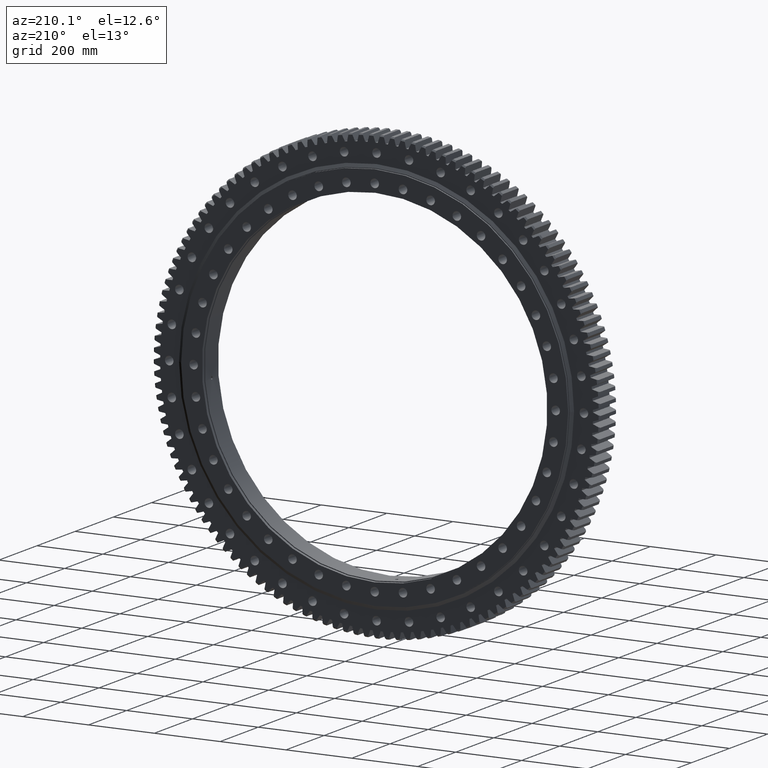
[diagram: clean part render]
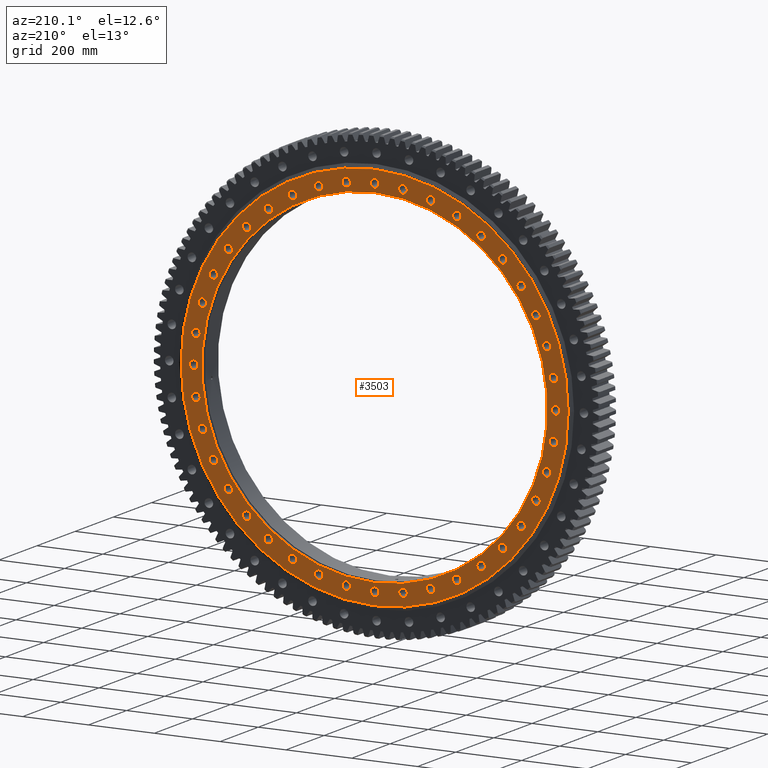
[diagram: same view with one face highlighted and labeled with its STEP entity id]
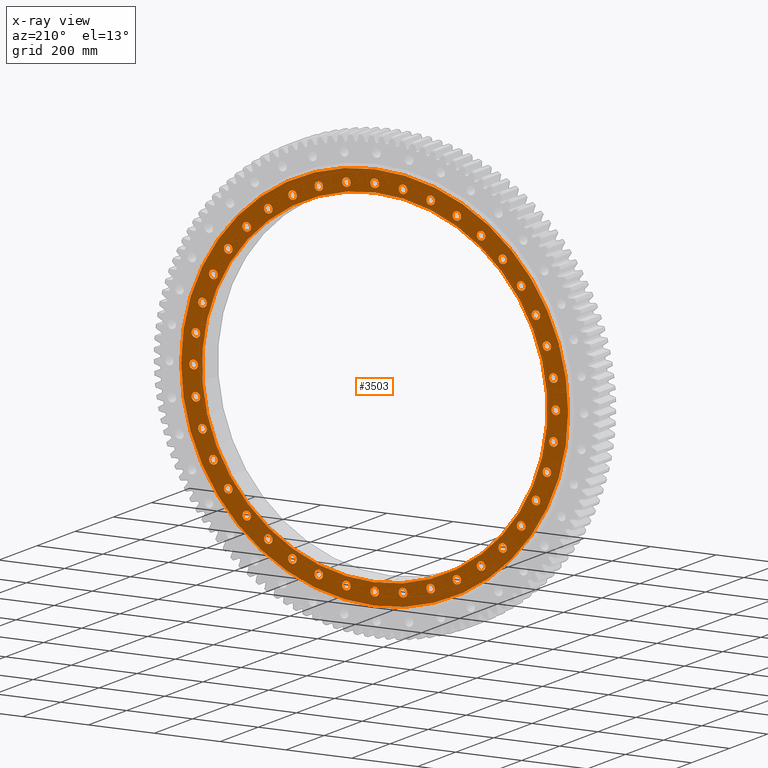
[diagram: x-ray of the same camera — body ghosted, the highlighted face saturated]
A machine part, auxiliary view. The second image highlights one B-rep face of the part: STEP entity #3503.
The next image is the same camera in x-ray: the body ghosted, the highlighted face saturated — about 0% of this face is hidden behind the body in this view.
In plain terms, the highlighted planar face has unit normal (0, -1, 0).
Its self-contained STEP definition (entity closure, byte-faithful):
#19 = DIRECTION ( 'NONE',  ( 3.081487911019577400E-033, 1.000000000000000000, -2.727064569436389100E-017 ) ) ;
#55 = CARTESIAN_POINT ( 'NONE',  ( 550.0000000000000000, 44.99999999999994300, -2.178377596034946200E-012 ) ) ;
#108 = CARTESIAN_POINT ( 'NONE',  ( 490.0535883036031400, 44.99999999999995000, 262.6947748567492300 ) ) ;
#207 = CARTESIAN_POINT ( 'NONE',  ( -86.03895577211935100, 44.99999999999995700, 530.2285873273270900 ) ) ;
#264 = CARTESIAN_POINT ( 'NONE',  ( 543.2285873273256100, 44.99999999999994300, -86.03895577212915700 ) ) ;
#334 = ORIENTED_EDGE ( 'NONE', *, *, #10178, .F. ) ;
#418 = VERTEX_POINT ( 'NONE', #25804 ) ;
#445 = VERTEX_POINT ( 'NONE', #17072 ) ;
#460 = FACE_BOUND ( 'NONE', #23389, .T. ) ;
#474 = VERTEX_POINT ( 'NONE', #21394 ) ;
#483 = VERTEX_POINT ( 'NONE', #24883 ) ;
#487 = DIRECTION ( 'NONE',  ( 1.000000000000000000, 0.0000000000000000000, 1.047444401652937600E-014 ) ) ;
#607 = CIRCLE ( 'NONE', #19772, 12.99999999999999800 ) ;
#641 = ORIENTED_EDGE ( 'NONE', *, *, #28195, .F. ) ;
#664 = DIRECTION ( 'NONE',  ( 9.244463733058732100E-033, 1.000000000000000000, -2.727064569436389700E-017 ) ) ;
#665 = EDGE_CURVE ( 'NONE', #15273, #22983, #27123, .T. ) ;
#673 = AXIS2_PLACEMENT_3D ( 'NONE', #18384, #7641, #9153 ) ;
#690 = CARTESIAN_POINT ( 'NONE',  ( -523.0810839623363800, 44.99999999999993600, -169.9593469062158700 ) ) ;
#713 = AXIS2_PLACEMENT_3D ( 'NONE', #32327, #18089, #25089 ) ;
#772 = VERTEX_POINT ( 'NONE', #13669 ) ;
#820 = DIRECTION ( 'NONE',  ( 0.0000000000000000000, 1.000000000000000000, -2.727064569436389700E-017 ) ) ;
#826 = CARTESIAN_POINT ( 'NONE',  ( -490.0535883036047800, 44.99999999999993600, -249.6947748567460500 ) ) ;
#870 = DIRECTION ( 'NONE',  ( 0.0000000000000000000, 0.0000000000000000000, 1.000000000000000000 ) ) ;
#957 = CIRCLE ( 'NONE', #29775, 13.00000000000003200 ) ;
#1112 = AXIS2_PLACEMENT_3D ( 'NONE', #29075, #12415, #31849 ) ;
#1159 = DIRECTION ( 'NONE',  ( -0.5877852522924684700, 0.0000000000000000000, -0.8090169943749507800 ) ) ;
#1341 = ORIENTED_EDGE ( 'NONE', *, *, #4259, .F. ) ;
#1352 = FACE_BOUND ( 'NONE', #4220, .T. ) ;
#1367 = VERTEX_POINT ( 'NONE', #27493 ) ;
#1468 = AXIS2_PLACEMENT_3D ( 'NONE', #6871, #23808, #7099 ) ;
#1584 = AXIS2_PLACEMENT_3D ( 'NONE', #5987, #25459, #8769 ) ;
#1595 = DIRECTION ( 'NONE',  ( 6.982962677686250900E-015, 0.0000000000000000000, -1.000000000000000000 ) ) ;
#1616 = DIRECTION ( 'NONE',  ( 3.081487911019577400E-033, 1.000000000000000000, -2.727064569436389700E-017 ) ) ;
#1670 = ORIENTED_EDGE ( 'NONE', *, *, #29886, .F. ) ;
#1756 = ORIENTED_EDGE ( 'NONE', *, *, #6261, .F. ) ;
#1794 = AXIS2_PLACEMENT_3D ( 'NONE', #22195, #5496, #24970 ) ;
#1867 = EDGE_CURVE ( 'NONE', #9386, #34309, #33607, .T. ) ;
#1871 = AXIS2_PLACEMENT_3D ( 'NONE', #2520, #14966, #29544 ) ;
#1905 = EDGE_CURVE ( 'NONE', #17366, #11412, #12315, .T. ) ;
#1921 = VERTEX_POINT ( 'NONE', #17153 ) ;
#1928 = DIRECTION ( 'NONE',  ( 0.0000000000000000000, -1.000000000000000000, 2.727064569436389700E-017 ) ) ;
#1929 = CARTESIAN_POINT ( 'NONE',  ( -550.0000000000000000, 44.99999999999994300, 13.00000000000600800 ) ) ;
#1985 = CARTESIAN_POINT ( 'NONE',  ( -490.0535883036047800, 44.99999999999993600, -236.6947748567460500 ) ) ;
#1995 = CARTESIAN_POINT ( 'NONE',  ( 543.2285873273260700, 44.99999999999994300, 86.03895577212530600 ) ) ;
#2018 = EDGE_LOOP ( 'NONE', ( #26876, #1341 ) ) ;
#2061 = VERTEX_POINT ( 'NONE', #27866 ) ;
#2072 = EDGE_LOOP ( 'NONE', ( #6108, #23075 ) ) ;
#2084 = CIRCLE ( 'NONE', #13871, 13.00000000000002500 ) ;
#2089 = DIRECTION ( 'NONE',  ( -3.081487911019577400E-033, 1.000000000000000000, -2.727064569436389100E-017 ) ) ;
#2191 = FACE_BOUND ( 'NONE', #3885, .T. ) ;
#2199 = CARTESIAN_POINT ( 'NONE',  ( 323.2818887608577300, 44.99999999999992900, -431.9593469062228900 ) ) ;
#2284 = DIRECTION ( 'NONE',  ( 3.081487911019577400E-033, 1.000000000000000000, -2.727064569436389700E-017 ) ) ;
#2333 = DIRECTION ( 'NONE',  ( 0.9510565162951498700, 0.0000000000000000000, 0.3090169943749583300 ) ) ;
#2435 = CARTESIAN_POINT ( 'NONE',  ( 323.2818887608608500, 44.99999999999995700, 457.9593469062206700 ) ) ;
#2520 = CARTESIAN_POINT ( 'NONE',  ( -323.2818887608544900, 44.99999999999995700, 444.9593469062253900 ) ) ;
#2632 = CARTESIAN_POINT ( 'NONE',  ( -444.9593469062242000, 44.99999999999993600, -336.2818887608559600 ) ) ;
#2728 = CARTESIAN_POINT ( 'NONE',  ( 169.9593469062218100, 44.99999999999995700, 510.0810839623343300 ) ) ;
#2751 = AXIS2_PLACEMENT_3D ( 'NONE', #22706, #19, #9013 ) ;
#2772 = DIRECTION ( 'NONE',  ( -9.244463733058732100E-033, 1.000000000000000000, -2.727064569436389100E-017 ) ) ;
#2964 = VERTEX_POINT ( 'NONE', #15731 ) ;
#3002 = AXIS2_PLACEMENT_3D ( 'NONE', #5595, #24575, #12218 ) ;
#3064 = FACE_BOUND ( 'NONE', #35092, .T. ) ;
#3123 = EDGE_CURVE ( 'NONE', #14631, #2061, #29212, .T. ) ;
#3154 = VERTEX_POINT ( 'NONE', #14725 ) ;
#3192 = CARTESIAN_POINT ( 'NONE',  ( 7.202086593445627400E-014, 44.99999999999993600, -588.0950000000000300 ) ) ;
#3250 = CIRCLE ( 'NONE', #21269, 12.99999999999999500 ) ;
#3269 = VERTEX_POINT ( 'NONE', #18029 ) ;
#3273 = DIRECTION ( 'NONE',  ( 3.081487911019577400E-033, 1.000000000000000000, -2.727064569436389400E-017 ) ) ;
#3304 = CARTESIAN_POINT ( 'NONE',  ( -444.9593469062171500, 44.99999999999995000, 336.2818887608657400 ) ) ;
#3340 = EDGE_LOOP ( 'NONE', ( #20712, #10553 ) ) ;
#3449 = DIRECTION ( 'NONE',  ( -0.9510565162951546400, 0.0000000000000000000, 0.3090169943749442300 ) ) ;
#3466 = EDGE_CURVE ( 'NONE', #18620, #8081, #21357, .T. ) ;
#3473 = DIRECTION ( 'NONE',  ( 1.540743955509788700E-033, 1.000000000000000000, -2.727064569436389400E-017 ) ) ;
#3496 = DIRECTION ( 'NONE',  ( 3.081487911019577400E-033, 1.000000000000000000, -2.727064569436389700E-017 ) ) ;
#3503 = ADVANCED_FACE ( 'NONE', ( #19598, #27873, #20488, #6548, #12225, #4823, #33506, #26159, #18736, #11351, #3954, #32628, #25265, #17863, #10459, #3064, #31778, #24404, #17000, #9588, #2191, #30906, #23540, #16125, #8694, #1352, #30030, #22659, #15262, #7816, #460, #29180, #21781, #14366, #6958, #35690, #28297, #20902, #13489, #6092, #34821, #27432 ), #17928, .F. ) ;
#3513 = ORIENTED_EDGE ( 'NONE', *, *, #8460, .F. ) ;
#3591 = AXIS2_PLACEMENT_3D ( 'NONE', #5202, #24644, #7953 ) ;
#3593 = DIRECTION ( 'NONE',  ( -0.8910065241883655700, 0.0000000000000000000, -0.4539904997395513000 ) ) ;
#3601 = CARTESIAN_POINT ( 'NONE',  ( 523.0810839623336500, 44.99999999999993600, -156.9593469062236600 ) ) ;
#3623 = ORIENTED_EDGE ( 'NONE', *, *, #4791, .F. ) ;
#3665 = DIRECTION ( 'NONE',  ( -0.9510565162951518700, 0.0000000000000000000, -0.3090169943749525600 ) ) ;
#3668 = VERTEX_POINT ( 'NONE', #27313 ) ;
#3671 = EDGE_LOOP ( 'NONE', ( #334, #11226 ) ) ;
#3864 = VERTEX_POINT ( 'NONE', #7844 ) ;
#3885 = EDGE_LOOP ( 'NONE', ( #4818, #33273 ) ) ;
#3933 = DIRECTION ( 'NONE',  ( -3.081487911019577400E-033, 1.000000000000000000, -2.727064569436389400E-017 ) ) ;
#3954 = FACE_BOUND ( 'NONE', #6013, .T. ) ;
#3980 = VERTEX_POINT ( 'NONE', #27894 ) ;
#4040 = DIRECTION ( 'NONE',  ( 0.0000000000000000000, 1.000000000000000000, -2.727064569436389700E-017 ) ) ;
#4102 = CIRCLE ( 'NONE', #12979, 12.99999999999999300 ) ;
#4220 = EDGE_LOOP ( 'NONE', ( #7110, #13918 ) ) ;
#4239 = EDGE_CURVE ( 'NONE', #19118, #5053, #9963, .T. ) ;
#4259 = EDGE_CURVE ( 'NONE', #8425, #31722, #28692, .T. ) ;
#4402 = AXIS2_PLACEMENT_3D ( 'NONE', #20136, #3473, #22951 ) ;
#4404 = AXIS2_PLACEMENT_3D ( 'NONE', #17544, #17148, #28088 ) ;
#4409 = AXIS2_PLACEMENT_3D ( 'NONE', #20680, #4040, #23511 ) ;
#4455 = DIRECTION ( 'NONE',  ( -7.703719777548943400E-034, 1.000000000000000000, -2.727064569436390300E-017 ) ) ;
#4613 = CARTESIAN_POINT ( 'NONE',  ( -4.095873112503532700E-012, 44.99999999999992900, -563.0000000000000000 ) ) ;
#4745 = DIRECTION ( 'NONE',  ( 0.4539904997395564100, 0.0000000000000000000, -0.8910065241883630100 ) ) ;
#4791 = EDGE_CURVE ( 'NONE', #12181, #32605, #30372, .T. ) ;
#4818 = ORIENTED_EDGE ( 'NONE', *, *, #23976, .F. ) ;
#4823 = FACE_BOUND ( 'NONE', #2018, .T. ) ;
#4913 = CIRCLE ( 'NONE', #17109, 12.99999999999997000 ) ;
#4985 = CARTESIAN_POINT ( 'NONE',  ( -86.03895577213127400, 44.99999999999992900, -543.2285873273251600 ) ) ;
#5011 = ORIENTED_EDGE ( 'NONE', *, *, #17323, .F. ) ;
#5030 = DIRECTION ( 'NONE',  ( 0.7071067811865390200, 0.0000000000000000000, 0.7071067811865561200 ) ) ;
#5053 = VERTEX_POINT ( 'NONE', #24069 ) ;
#5087 = DIRECTION ( 'NONE',  ( 0.0000000000000000000, 1.000000000000000000, -2.727064569436390300E-017 ) ) ;
#5181 = EDGE_CURVE ( 'NONE', #3154, #24621, #6851, .T. ) ;
#5186 = CIRCLE ( 'NONE', #18866, 12.99999999999995900 ) ;
#5202 = CARTESIAN_POINT ( 'NONE',  ( -323.2818887608544900, 44.99999999999995700, 444.9593469062253900 ) ) ;
#5215 = VERTEX_POINT ( 'NONE', #2632 ) ;
#5255 = EDGE_LOOP ( 'NONE', ( #18112, #23404 ) ) ;
#5283 = CARTESIAN_POINT ( 'NONE',  ( 86.03895577212725200, 44.99999999999995700, 543.2285873273259500 ) ) ;
#5294 = CARTESIAN_POINT ( 'NONE',  ( 550.0000000000000000, 44.99999999999994300, -2.178377596034946200E-012 ) ) ;
#5341 = AXIS2_PLACEMENT_3D ( 'NONE', #21095, #4455, #23933 ) ;
#5439 = CARTESIAN_POINT ( 'NONE',  ( -388.9087296525962600, 44.99999999999995000, 388.9087296526061600 ) ) ;
#5464 = VERTEX_POINT ( 'NONE', #22369 ) ;
#5491 = CIRCLE ( 'NONE', #26832, 13.00000000000001600 ) ;
#5496 = DIRECTION ( 'NONE',  ( 0.0000000000000000000, 1.000000000000000000, -2.727064569436389400E-017 ) ) ;
#5535 = EDGE_CURVE ( 'NONE', #16594, #33890, #10306, .T. ) ;
#5537 = DIRECTION ( 'NONE',  ( -3.081487911019577400E-033, 1.000000000000000000, -2.727064569436390000E-017 ) ) ;
#5595 = CARTESIAN_POINT ( 'NONE',  ( -444.9593469062242000, 44.99999999999993600, -323.2818887608559600 ) ) ;
#5607 = VERTEX_POINT ( 'NONE', #2728 ) ;
#5770 = DIRECTION ( 'NONE',  ( -3.081487911019577400E-033, 1.000000000000000000, -2.727064569436389700E-017 ) ) ;
#5798 = AXIS2_PLACEMENT_3D ( 'NONE', #11275, #3933, #25222 ) ;
#5834 = CIRCLE ( 'NONE', #32654, 12.99999999999996100 ) ;
#5978 = ORIENTED_EDGE ( 'NONE', *, *, #26104, .T. ) ;
#5987 = CARTESIAN_POINT ( 'NONE',  ( -543.2285873273267500, 44.99999999999994300, -86.03895577212128400 ) ) ;
#5989 = CARTESIAN_POINT ( 'NONE',  ( -490.0535883035993300, 44.99999999999995000, 249.6947748567566500 ) ) ;
#6013 = EDGE_LOOP ( 'NONE', ( #18929, #19129 ) ) ;
#6082 = DIRECTION ( 'NONE',  ( 0.0000000000000000000, 1.000000000000000000, -2.727064569436390300E-017 ) ) ;
#6092 = FACE_BOUND ( 'NONE', #23416, .T. ) ;
#6108 = ORIENTED_EDGE ( 'NONE', *, *, #27511, .F. ) ;
#6149 = CARTESIAN_POINT ( 'NONE',  ( 0.0000000000000000000, 44.99999999999996400, 588.0950000000000300 ) ) ;
#6162 = CARTESIAN_POINT ( 'NONE',  ( 86.03895577212317400, 44.99999999999992900, -543.2285873273264100 ) ) ;
#6179 = DIRECTION ( 'NONE',  ( 0.0000000000000000000, 1.000000000000000000, -2.727064569436389100E-017 ) ) ;
#6261 = EDGE_CURVE ( 'NONE', #16319, #8700, #26355, .T. ) ;
#6336 = CARTESIAN_POINT ( 'NONE',  ( 523.0810839623336500, 44.99999999999993600, -169.9593469062236300 ) ) ;
#6383 = ORIENTED_EDGE ( 'NONE', *, *, #27884, .F. ) ;
#6392 = AXIS2_PLACEMENT_3D ( 'NONE', #24482, #7782, #27256 ) ;
#6518 = EDGE_LOOP ( 'NONE', ( #23800, #11274 ) ) ;
#6548 = FACE_BOUND ( 'NONE', #12699, .T. ) ;
#6555 = EDGE_CURVE ( 'NONE', #34309, #9386, #12845, .T. ) ;
#6577 = CARTESIAN_POINT ( 'NONE',  ( 169.9593469062176300, 44.99999999999992900, -510.0810839623356400 ) ) ;
#6659 = CIRCLE ( 'NONE', #19955, 12.99999999999996100 ) ;
#6671 = AXIS2_PLACEMENT_3D ( 'NONE', #26780, #8077, #25297 ) ;
#6707 = CARTESIAN_POINT ( 'NONE',  ( -249.6947748567442000, 44.99999999999995700, 477.0535883036056900 ) ) ;
#6781 = CARTESIAN_POINT ( 'NONE',  ( 323.2818887608608500, 44.99999999999995700, 444.9593469062206700 ) ) ;
#6851 = CIRCLE ( 'NONE', #5798, 12.99999999999995900 ) ;
#6852 = CIRCLE ( 'NONE', #25062, 13.00000000000001100 ) ;
#6871 = CARTESIAN_POINT ( 'NONE',  ( -388.9087296526046800, 44.99999999999992900, -388.9087296525975700 ) ) ;
#6954 = ORIENTED_EDGE ( 'NONE', *, *, #15743, .F. ) ;
#6958 = FACE_BOUND ( 'NONE', #29169, .T. ) ;
#7015 = CIRCLE ( 'NONE', #673, 12.99999999999994500 ) ;
#7070 = CARTESIAN_POINT ( 'NONE',  ( 249.6947748567514200, 44.99999999999995700, 490.0535883036020000 ) ) ;
#7099 = DIRECTION ( 'NONE',  ( -0.7071067811865432400, 0.0000000000000000000, -0.7071067811865517900 ) ) ;
#7110 = ORIENTED_EDGE ( 'NONE', *, *, #27732, .F. ) ;
#7159 = CIRCLE ( 'NONE', #35007, 13.00000000000001100 ) ;
#7172 = AXIS2_PLACEMENT_3D ( 'NONE', #10702, #32588, #27037 ) ;
#7176 = CIRCLE ( 'NONE', #1468, 12.99999999999999300 ) ;
#7267 = DIRECTION ( 'NONE',  ( 0.0000000000000000000, 1.000000000000000000, -2.727064569436390000E-017 ) ) ;
#7391 = CARTESIAN_POINT ( 'NONE',  ( 0.0000000000000000000, 44.99999999999995700, 588.0950000000000300 ) ) ;
#7399 = CIRCLE ( 'NONE', #7172, 13.00000000000001600 ) ;
#7401 = CARTESIAN_POINT ( 'NONE',  ( -523.0810839623363800, 44.99999999999993600, -169.9593469062158700 ) ) ;
#7451 = VERTEX_POINT ( 'NONE', #26132 ) ;
#7499 = CARTESIAN_POINT ( 'NONE',  ( 323.2818887608577300, 44.99999999999992900, -444.9593469062228900 ) ) ;
#7570 = CIRCLE ( 'NONE', #25007, 13.00000000000004100 ) ;
#7641 = DIRECTION ( 'NONE',  ( 3.081487911019577400E-033, 1.000000000000000000, -2.727064569436389100E-017 ) ) ;
#7735 = CARTESIAN_POINT ( 'NONE',  ( 543.2285873273256100, 44.99999999999994300, -99.03895577212915700 ) ) ;
#7741 = CIRCLE ( 'NONE', #32012, 13.00000000000003600 ) ;
#7750 = DIRECTION ( 'NONE',  ( -0.1564344650402240700, 0.0000000000000000000, -0.9876883405951387700 ) ) ;
#7782 = DIRECTION ( 'NONE',  ( 0.0000000000000000000, 1.000000000000000000, -2.727064569436390300E-017 ) ) ;
#7816 = FACE_BOUND ( 'NONE', #3340, .T. ) ;
#7844 = CARTESIAN_POINT ( 'NONE',  ( 323.2818887608608500, 44.99999999999995700, 431.9593469062206700 ) ) ;
#7863 = EDGE_CURVE ( 'NONE', #34665, #7451, #6659, .T. ) ;
#7865 = AXIS2_PLACEMENT_3D ( 'NONE', #9367, #30394, #13207 ) ;
#7953 = DIRECTION ( 'NONE',  ( -0.5877852522924732500, 0.0000000000000000000, 0.8090169943749472300 ) ) ;
#8038 = DIRECTION ( 'NONE',  ( 0.1564344650402167700, 0.0000000000000000000, 0.9876883405951399900 ) ) ;
#8049 = VERTEX_POINT ( 'NONE', #17467 ) ;
#8073 = VERTEX_POINT ( 'NONE', #12246 ) ;
#8077 = DIRECTION ( 'NONE',  ( 0.0000000000000000000, 1.000000000000000000, -2.727064569436390300E-017 ) ) ;
#8079 = EDGE_CURVE ( 'NONE', #2061, #14631, #29285, .T. ) ;
#8081 = VERTEX_POINT ( 'NONE', #25172 ) ;
#8082 = AXIS2_PLACEMENT_3D ( 'NONE', #826, #20250, #3593 ) ;
#8092 = DIRECTION ( 'NONE',  ( 0.5877852522924809100, 0.0000000000000000000, -0.8090169943749417900 ) ) ;
#8130 = AXIS2_PLACEMENT_3D ( 'NONE', #7499, #5087, #8092 ) ;
#8198 = VERTEX_POINT ( 'NONE', #17901 ) ;
#8204 = CARTESIAN_POINT ( 'NONE',  ( -169.9593469062252200, 44.99999999999992900, -523.0810839623332000 ) ) ;
#8215 = EDGE_CURVE ( 'NONE', #8621, #22506, #13605, .T. ) ;
#8240 = VERTEX_POINT ( 'NONE', #6149 ) ;
#8265 = EDGE_CURVE ( 'NONE', #5053, #19118, #4102, .T. ) ;
#8385 = AXIS2_PLACEMENT_3D ( 'NONE', #20119, #664, #3449 ) ;
#8402 = CARTESIAN_POINT ( 'NONE',  ( -523.0810839623326300, 44.99999999999995000, 169.9593469062271800 ) ) ;
#8416 = DIRECTION ( 'NONE',  ( 0.3090169943749544500, 0.0000000000000000000, -0.9510565162951512000 ) ) ;
#8425 = VERTEX_POINT ( 'NONE', #13981 ) ;
#8441 = CIRCLE ( 'NONE', #4402, 13.00000000000004800 ) ;
#8460 = EDGE_CURVE ( 'NONE', #10301, #11929, #27566, .T. ) ;
#8468 = CIRCLE ( 'NONE', #11585, 12.99999999999997500 ) ;
#8596 = ORIENTED_EDGE ( 'NONE', *, *, #14773, .F. ) ;
#8621 = VERTEX_POINT ( 'NONE', #207 ) ;
#8639 = CIRCLE ( 'NONE', #15154, 12.99999999999998800 ) ;
#8674 = VERTEX_POINT ( 'NONE', #11590 ) ;
#8694 = FACE_BOUND ( 'NONE', #33618, .T. ) ;
#8700 = VERTEX_POINT ( 'NONE', #10466 ) ;
#8769 = DIRECTION ( 'NONE',  ( -0.9876883405951368800, 0.0000000000000000000, -0.1564344650402358100 ) ) ;
#8772 = DIRECTION ( 'NONE',  ( -0.8910065241883690100, 0.0000000000000000000, 0.4539904997395445300 ) ) ;
#8870 = CIRCLE ( 'NONE', #24534, 13.00000000000002500 ) ;
#8941 = DIRECTION ( 'NONE',  ( 0.1564344650402388900, 0.0000000000000000000, -0.9876883405951364400 ) ) ;
#9013 = DIRECTION ( 'NONE',  ( -0.5877852522924684700, 0.0000000000000000000, -0.8090169943749507800 ) ) ;
#9115 = DIRECTION ( 'NONE',  ( -0.9510565162951518700, 0.0000000000000000000, -0.3090169943749525600 ) ) ;
#9152 = DIRECTION ( 'NONE',  ( 0.9510565162951564200, 0.0000000000000000000, -0.3090169943749384000 ) ) ;
#9153 = DIRECTION ( 'NONE',  ( -0.9876883405951368800, 0.0000000000000000000, -0.1564344650402358100 ) ) ;
#9230 = ORIENTED_EDGE ( 'NONE', *, *, #5535, .F. ) ;
#9299 = ORIENTED_EDGE ( 'NONE', *, *, #34513, .F. ) ;
#9324 = CIRCLE ( 'NONE', #31390, 12.99999999999993800 ) ;
#9335 = DIRECTION ( 'NONE',  ( -2.189528850507526700E-047, 1.000000000000000000, -2.727064569436389100E-017 ) ) ;
#9367 = CARTESIAN_POINT ( 'NONE',  ( 388.9087296526020600, 44.99999999999995000, 388.9087296526003000 ) ) ;
#9385 = DIRECTION ( 'NONE',  ( -1.540743955509788700E-033, 1.000000000000000000, -2.727064569436389100E-017 ) ) ;
#9386 = VERTEX_POINT ( 'NONE', #10723 ) ;
#9573 = EDGE_LOOP ( 'NONE', ( #27398, #1756 ) ) ;
#9588 = FACE_BOUND ( 'NONE', #5255, .T. ) ;
#9592 = CARTESIAN_POINT ( 'NONE',  ( 444.9593469062218700, 44.99999999999995000, 323.2818887608592000 ) ) ;
#9597 = DIRECTION ( 'NONE',  ( 0.5877852522924635900, 0.0000000000000000000, 0.8090169943749543300 ) ) ;
#9785 = CIRCLE ( 'NONE', #1584, 12.99999999999994500 ) ;
#9868 = DIRECTION ( 'NONE',  ( -3.081487911019577400E-033, 1.000000000000000000, -2.727064569436389700E-017 ) ) ;
#9881 = DIRECTION ( 'NONE',  ( 0.4539904997395377600, 0.0000000000000000000, 0.8910065241883724500 ) ) ;
#9889 = VERTEX_POINT ( 'NONE', #19837 ) ;
#9963 = CIRCLE ( 'NONE', #7865, 12.99999999999999300 ) ;
#10081 = DIRECTION ( 'NONE',  ( -0.3090169943749486700, 0.0000000000000000000, 0.9510565162951532000 ) ) ;
#10134 = AXIS2_PLACEMENT_3D ( 'NONE', #19947, #3273, #22757 ) ;
#10142 = DIRECTION ( 'NONE',  ( -3.081487911019577400E-033, 1.000000000000000000, -2.727064569436389400E-017 ) ) ;
#10146 = CIRCLE ( 'NONE', #11638, 13.00000000000004400 ) ;
#10147 = CARTESIAN_POINT ( 'NONE',  ( 490.0535883036012000, 44.99999999999993600, -249.6947748567531600 ) ) ;
#10178 = EDGE_CURVE ( 'NONE', #9889, #31987, #7015, .T. ) ;
#10225 = EDGE_CURVE ( 'NONE', #12016, #3980, #13545, .T. ) ;
#10259 = DIRECTION ( 'NONE',  ( -0.3090169943749486700, 0.0000000000000000000, 0.9510565162951532000 ) ) ;
#10301 = VERTEX_POINT ( 'NONE', #31294 ) ;
#10306 = CIRCLE ( 'NONE', #713, 13.00000000000003600 ) ;
#10321 = AXIS2_PLACEMENT_3D ( 'NONE', #18756, #2089, #21532 ) ;
#10364 = ORIENTED_EDGE ( 'NONE', *, *, #33223, .F. ) ;
#10388 = DIRECTION ( 'NONE',  ( -1.540743955509788700E-033, 1.000000000000000000, -2.727064569436389400E-017 ) ) ;
#10459 = FACE_BOUND ( 'NONE', #23327, .T. ) ;
#10466 = CARTESIAN_POINT ( 'NONE',  ( -490.0535883035993300, 44.99999999999995000, 262.6947748567566200 ) ) ;
#10494 = EDGE_CURVE ( 'NONE', #3864, #15096, #27032, .T. ) ;
#10530 = DIRECTION ( 'NONE',  ( -3.081487911019577400E-033, 1.000000000000000000, -2.727064569436389700E-017 ) ) ;
#10544 = DIRECTION ( 'NONE',  ( 0.0000000000000000000, 1.000000000000000000, -2.727064569436389700E-017 ) ) ;
#10553 = ORIENTED_EDGE ( 'NONE', *, *, #30273, .F. ) ;
#10651 = EDGE_CURVE ( 'NONE', #5215, #1921, #32648, .T. ) ;
#10702 = CARTESIAN_POINT ( 'NONE',  ( -444.9593469062171500, 44.99999999999995000, 323.2818887608657400 ) ) ;
#10713 = DIRECTION ( 'NONE',  ( -9.244463733058732100E-033, 1.000000000000000000, -2.727064569436389100E-017 ) ) ;
#10723 = CARTESIAN_POINT ( 'NONE',  ( -169.9593469062139400, 44.99999999999995700, 536.0810839623368300 ) ) ;
#10780 = AXIS2_PLACEMENT_3D ( 'NONE', #17461, #820, #20245 ) ;
#10793 = CIRCLE ( 'NONE', #1871, 12.99999999999997300 ) ;
#10875 = CARTESIAN_POINT ( 'NONE',  ( -543.2285873273249300, 44.99999999999994300, 86.03895577213305000 ) ) ;
#10882 = CIRCLE ( 'NONE', #3591, 12.99999999999997300 ) ;
#10895 = CARTESIAN_POINT ( 'NONE',  ( 0.0000000000000000000, 44.99999999999994300, 0.0000000000000000000 ) ) ;
#10979 = VERTEX_POINT ( 'NONE', #3601 ) ;
#10982 = CIRCLE ( 'NONE', #22105, 588.0950000000000300 ) ;
#11023 = DIRECTION ( 'NONE',  ( -0.3090169943749403500, 0.0000000000000000000, -0.9510565162951557500 ) ) ;
#11092 = VERTEX_POINT ( 'NONE', #17577 ) ;
#11124 = ORIENTED_EDGE ( 'NONE', *, *, #4239, .F. ) ;
#11139 = DIRECTION ( 'NONE',  ( 0.0000000000000000000, 1.000000000000000000, -2.727064569436389400E-017 ) ) ;
#11148 = VERTEX_POINT ( 'NONE', #22731 ) ;
#11150 = AXIS2_PLACEMENT_3D ( 'NONE', #23646, #12327, #29229 ) ;
#11185 = ORIENTED_EDGE ( 'NONE', *, *, #1867, .F. ) ;
#11226 = ORIENTED_EDGE ( 'NONE', *, *, #32125, .F. ) ;
#11241 = DIRECTION ( 'NONE',  ( -0.9510565162951546400, 0.0000000000000000000, 0.3090169943749442300 ) ) ;
#11262 = DIRECTION ( 'NONE',  ( 0.9510565162951498700, 0.0000000000000000000, 0.3090169943749583300 ) ) ;
#11274 = ORIENTED_EDGE ( 'NONE', *, *, #8215, .F. ) ;
#11275 = CARTESIAN_POINT ( 'NONE',  ( 543.2285873273260700, 44.99999999999994300, 86.03895577212530600 ) ) ;
#11351 = FACE_BOUND ( 'NONE', #19595, .T. ) ;
#11412 = VERTEX_POINT ( 'NONE', #21747 ) ;
#11563 = EDGE_LOOP ( 'NONE', ( #21566, #32178 ) ) ;
#11585 = AXIS2_PLACEMENT_3D ( 'NONE', #27062, #10388, #29832 ) ;
#11590 = CARTESIAN_POINT ( 'NONE',  ( 7.938094626069870900E-012, 44.99999999999995700, 563.0000000000000000 ) ) ;
#11624 = ORIENTED_EDGE ( 'NONE', *, *, #29780, .F. ) ;
#11628 = AXIS2_PLACEMENT_3D ( 'NONE', #9592, #10530, #35750 ) ;
#11638 = AXIS2_PLACEMENT_3D ( 'NONE', #28540, #11887, #31337 ) ;
#11651 = ORIENTED_EDGE ( 'NONE', *, *, #34081, .F. ) ;
#11654 = ORIENTED_EDGE ( 'NONE', *, *, #16187, .F. ) ;
#11764 = EDGE_CURVE ( 'NONE', #12201, #21290, #8639, .T. ) ;
#11809 = EDGE_CURVE ( 'NONE', #24621, #3154, #5186, .T. ) ;
#11880 = DIRECTION ( 'NONE',  ( -0.1564344650402302900, 0.0000000000000000000, 0.9876883405951378800 ) ) ;
#11887 = DIRECTION ( 'NONE',  ( 7.703719777548943400E-034, 1.000000000000000000, -2.727064569436390300E-017 ) ) ;
#11907 = CIRCLE ( 'NONE', #19746, 12.99999999999995200 ) ;
#11929 = VERTEX_POINT ( 'NONE', #14079 ) ;
#11964 = AXIS2_PLACEMENT_3D ( 'NONE', #10875, #30314, #13659 ) ;
#11974 = ORIENTED_EDGE ( 'NONE', *, *, #31900, .F. ) ;
#12010 = EDGE_CURVE ( 'NONE', #7451, #34665, #32995, .T. ) ;
#12016 = VERTEX_POINT ( 'NONE', #1929 ) ;
#12131 = CARTESIAN_POINT ( 'NONE',  ( 444.9593469062218700, 44.99999999999995000, 336.2818887608592600 ) ) ;
#12181 = VERTEX_POINT ( 'NONE', #33389 ) ;
#12186 = CARTESIAN_POINT ( 'NONE',  ( 523.0810839623350100, 44.99999999999995000, 182.9593469062194500 ) ) ;
#12201 = VERTEX_POINT ( 'NONE', #12186 ) ;
#12218 = DIRECTION ( 'NONE',  ( -0.8090169943749452300, 0.0000000000000000000, -0.5877852522924760200 ) ) ;
#12225 = FACE_BOUND ( 'NONE', #16025, .T. ) ;
#12246 = CARTESIAN_POINT ( 'NONE',  ( 523.0810839623336500, 44.99999999999993600, -182.9593469062236300 ) ) ;
#12283 = VERTEX_POINT ( 'NONE', #108 ) ;
#12314 = DIRECTION ( 'NONE',  ( -0.0000000000000000000, 1.000000000000000000, -2.727064569436389700E-017 ) ) ;
#12315 = CIRCLE ( 'NONE', #25320, 12.99999999999999500 ) ;
#12325 = DIRECTION ( 'NONE',  ( 1.540743955509788700E-033, 1.000000000000000000, -2.727064569436389700E-017 ) ) ;
#12327 = DIRECTION ( 'NONE',  ( -3.081487911019577400E-033, 1.000000000000000000, -2.727064569436389700E-017 ) ) ;
#12415 = DIRECTION ( 'NONE',  ( 0.0000000000000000000, 1.000000000000000000, -2.727064569436389400E-017 ) ) ;
#12474 = ORIENTED_EDGE ( 'NONE', *, *, #22781, .T. ) ;
#12508 = VERTEX_POINT ( 'NONE', #31958 ) ;
#12526 = EDGE_LOOP ( 'NONE', ( #21247, #11974 ) ) ;
#12597 = EDGE_LOOP ( 'NONE', ( #32658, #13073 ) ) ;
#12647 = VERTEX_POINT ( 'NONE', #32155 ) ;
#12699 = EDGE_LOOP ( 'NONE', ( #22165, #34419 ) ) ;
#12748 = CARTESIAN_POINT ( 'NONE',  ( 249.6947748567514200, 44.99999999999995700, 490.0535883036020000 ) ) ;
#12800 = CARTESIAN_POINT ( 'NONE',  ( 169.9593469062218100, 44.99999999999995700, 523.0810839623343300 ) ) ;
#12845 = CIRCLE ( 'NONE', #16635, 12.99999999999994300 ) ;
#12914 = CARTESIAN_POINT ( 'NONE',  ( -490.0535883036047800, 44.99999999999993600, -249.6947748567460500 ) ) ;
#12955 = DIRECTION ( 'NONE',  ( 0.8910065241883733400, 0.0000000000000000000, -0.4539904997395359800 ) ) ;
#12979 = AXIS2_PLACEMENT_3D ( 'NONE', #20333, #35675, #5030 ) ;
#12997 = AXIS2_PLACEMENT_3D ( 'NONE', #6781, #26264, #9597 ) ;
#13050 = ORIENTED_EDGE ( 'NONE', *, *, #19908, .F. ) ;
#13051 = ORIENTED_EDGE ( 'NONE', *, *, #33337, .F. ) ;
#13073 = ORIENTED_EDGE ( 'NONE', *, *, #5181, .F. ) ;
#13076 = ORIENTED_EDGE ( 'NONE', *, *, #29869, .F. ) ;
#13122 = CIRCLE ( 'NONE', #28153, 12.99999999999998800 ) ;
#13207 = DIRECTION ( 'NONE',  ( 0.7071067811865390200, 0.0000000000000000000, 0.7071067811865561200 ) ) ;
#13291 = ORIENTED_EDGE ( 'NONE', *, *, #21263, .F. ) ;
#13293 = CARTESIAN_POINT ( 'NONE',  ( 0.0000000000000000000, 44.99999999999995700, 524.9999999999998900 ) ) ;
#13336 = DIRECTION ( 'NONE',  ( -3.081487911019577400E-033, 1.000000000000000000, -2.727064569436389100E-017 ) ) ;
#13340 = ORIENTED_EDGE ( 'NONE', *, *, #29052, .F. ) ;
#13489 = FACE_BOUND ( 'NONE', #6518, .T. ) ;
#13502 = ORIENTED_EDGE ( 'NONE', *, *, #665, .T. ) ;
#13545 = CIRCLE ( 'NONE', #4404, 13.00000000000001100 ) ;
#13605 = CIRCLE ( 'NONE', #36029, 13.00000000000004400 ) ;
#13659 = DIRECTION ( 'NONE',  ( -0.9876883405951382100, 0.0000000000000000000, 0.1564344650402271800 ) ) ;
#13669 = CARTESIAN_POINT ( 'NONE',  ( 323.2818887608577300, 44.99999999999992900, -457.9593469062229500 ) ) ;
#13676 = DIRECTION ( 'NONE',  ( 0.0000000000000000000, -2.643388153869420800E-017, -1.000000000000000000 ) ) ;
#13739 = CARTESIAN_POINT ( 'NONE',  ( -323.2818887608641500, 44.99999999999992900, -457.9593469062182900 ) ) ;
#13871 = AXIS2_PLACEMENT_3D ( 'NONE', #22873, #6179, #25683 ) ;
#13918 = ORIENTED_EDGE ( 'NONE', *, *, #10651, .F. ) ;
#13981 = CARTESIAN_POINT ( 'NONE',  ( 444.9593469062218700, 44.99999999999995000, 310.2818887608592000 ) ) ;
#14079 = CARTESIAN_POINT ( 'NONE',  ( 388.9087296525989400, 44.99999999999992900, -375.9087296526033700 ) ) ;
#14080 = ORIENTED_EDGE ( 'NONE', *, *, #6555, .F. ) ;
#14084 = EDGE_CURVE ( 'NONE', #21695, #31422, #30505, .T. ) ;
#14115 = EDGE_CURVE ( 'NONE', #31842, #14874, #957, .T. ) ;
#14121 = DIRECTION ( 'NONE',  ( 1.000000000000000000, 0.0000000000000000000, 1.047444401652937600E-014 ) ) ;
#14267 = DIRECTION ( 'NONE',  ( 0.9876883405951394400, 0.0000000000000000000, -0.1564344650402199100 ) ) ;
#14366 = FACE_BOUND ( 'NONE', #30765, .T. ) ;
#14397 = AXIS2_PLACEMENT_3D ( 'NONE', #5294, #14415, #487 ) ;
#14415 = DIRECTION ( 'NONE',  ( -3.081487911019577400E-033, 1.000000000000000000, -2.727064569436389700E-017 ) ) ;
#14424 = CARTESIAN_POINT ( 'NONE',  ( -388.9087296526046800, 44.99999999999992900, -401.9087296525976300 ) ) ;
#14499 = ORIENTED_EDGE ( 'NONE', *, *, #32368, .F. ) ;
#14558 = DIRECTION ( 'NONE',  ( 0.0000000000000000000, 1.000000000000000000, -2.727064569436389700E-017 ) ) ;
#14631 = VERTEX_POINT ( 'NONE', #26056 ) ;
#14667 = EDGE_CURVE ( 'NONE', #29132, #445, #15698, .T. ) ;
#14720 = DIRECTION ( 'NONE',  ( -1.540743955509788700E-033, 1.000000000000000000, -2.727064569436389100E-017 ) ) ;
#14725 = CARTESIAN_POINT ( 'NONE',  ( 543.2285873273260700, 44.99999999999994300, 73.03895577212530600 ) ) ;
#14729 = CARTESIAN_POINT ( 'NONE',  ( 323.2818887608577300, 44.99999999999992900, -444.9593469062228900 ) ) ;
#14773 = EDGE_CURVE ( 'NONE', #26802, #474, #7399, .T. ) ;
#14874 = VERTEX_POINT ( 'NONE', #33259 ) ;
#14905 = AXIS2_PLACEMENT_3D ( 'NONE', #31211, #14558, #34013 ) ;
#14906 = CIRCLE ( 'NONE', #6392, 12.99999999999999300 ) ;
#14966 = DIRECTION ( 'NONE',  ( 6.162975822039154700E-033, 1.000000000000000000, -2.727064569436390300E-017 ) ) ;
#15096 = VERTEX_POINT ( 'NONE', #2435 ) ;
#15151 = EDGE_CURVE ( 'NONE', #5607, #29502, #32175, .T. ) ;
#15154 = AXIS2_PLACEMENT_3D ( 'NONE', #28030, #5770, #11262 ) ;
#15210 = CIRCLE ( 'NONE', #33756, 13.00000000000002300 ) ;
#15250 = CARTESIAN_POINT ( 'NONE',  ( 444.9593469062195900, 44.99999999999993600, -323.2818887608623900 ) ) ;
#15262 = FACE_BOUND ( 'NONE', #3671, .T. ) ;
#15268 = EDGE_LOOP ( 'NONE', ( #21617, #33116 ) ) ;
#15273 = VERTEX_POINT ( 'NONE', #13293 ) ;
#15328 = DIRECTION ( 'NONE',  ( 0.0000000000000000000, -2.727064569436389700E-017, -1.000000000000000000 ) ) ;
#15384 = CIRCLE ( 'NONE', #33380, 12.99999999999999300 ) ;
#15466 = EDGE_CURVE ( 'NONE', #17732, #12647, #15210, .T. ) ;
#15541 = DIRECTION ( 'NONE',  ( 0.4539904997395377600, 0.0000000000000000000, 0.8910065241883724500 ) ) ;
#15698 = CIRCLE ( 'NONE', #30236, 13.00000000000003900 ) ;
#15717 = DIRECTION ( 'NONE',  ( -0.8910065241883655700, 0.0000000000000000000, -0.4539904997395513000 ) ) ;
#15731 = CARTESIAN_POINT ( 'NONE',  ( 86.03895577212725200, 44.99999999999995700, 530.2285873273259500 ) ) ;
#15743 = EDGE_CURVE ( 'NONE', #772, #27046, #21276, .T. ) ;
#15835 = CARTESIAN_POINT ( 'NONE',  ( -249.6947748567548300, 44.99999999999992900, -490.0535883036002900 ) ) ;
#15855 = DIRECTION ( 'NONE',  ( 0.9876883405951358800, 0.0000000000000000000, 0.1564344650402420300 ) ) ;
#15910 = EDGE_CURVE ( 'NONE', #27046, #772, #17773, .T. ) ;
#15969 = VERTEX_POINT ( 'NONE', #21278 ) ;
#16025 = EDGE_LOOP ( 'NONE', ( #27839, #11124 ) ) ;
#16125 = FACE_BOUND ( 'NONE', #26174, .T. ) ;
#16187 = EDGE_CURVE ( 'NONE', #8198, #18146, #10793, .T. ) ;
#16258 = DIRECTION ( 'NONE',  ( -0.0000000000000000000, 1.000000000000000000, -2.727064569436389700E-017 ) ) ;
#16319 = VERTEX_POINT ( 'NONE', #32204 ) ;
#16328 = EDGE_LOOP ( 'NONE', ( #32454, #6383 ) ) ;
#16341 = CARTESIAN_POINT ( 'NONE',  ( -543.2285873273267500, 44.99999999999994300, -99.03895577212128400 ) ) ;
#16359 = DIRECTION ( 'NONE',  ( -3.081487911019577400E-033, 1.000000000000000000, -2.727064569436389700E-017 ) ) ;
#16448 = EDGE_CURVE ( 'NONE', #32314, #483, #32507, .T. ) ;
#16490 = VERTEX_POINT ( 'NONE', #32820 ) ;
#16514 = VERTEX_POINT ( 'NONE', #35088 ) ;
#16594 = VERTEX_POINT ( 'NONE', #18988 ) ;
#16623 = CARTESIAN_POINT ( 'NONE',  ( -543.2285873273249300, 44.99999999999994300, 73.03895577213305000 ) ) ;
#16635 = AXIS2_PLACEMENT_3D ( 'NONE', #35686, #23045, #10259 ) ;
#16695 = ORIENTED_EDGE ( 'NONE', *, *, #12010, .F. ) ;
#16712 = DIRECTION ( 'NONE',  ( -0.7071067811865474600, 0.0000000000000000000, 0.7071067811865474600 ) ) ;
#16790 = CARTESIAN_POINT ( 'NONE',  ( -86.03895577213127400, 44.99999999999992900, -543.2285873273251600 ) ) ;
#16826 = ORIENTED_EDGE ( 'NONE', *, *, #19637, .F. ) ;
#16865 = ORIENTED_EDGE ( 'NONE', *, *, #26292, .F. ) ;
#16952 = ORIENTED_EDGE ( 'NONE', *, *, #11764, .F. ) ;
#17000 = FACE_BOUND ( 'NONE', #16328, .T. ) ;
#17022 = CARTESIAN_POINT ( 'NONE',  ( 169.9593469062176300, 44.99999999999992900, -523.0810839623357000 ) ) ;
#17072 = CARTESIAN_POINT ( 'NONE',  ( -543.2285873273249300, 44.99999999999994300, 99.03895577213305000 ) ) ;
#17109 = AXIS2_PLACEMENT_3D ( 'NONE', #31366, #14720, #34150 ) ;
#17148 = DIRECTION ( 'NONE',  ( 3.081487911019577400E-033, 1.000000000000000000, -2.727064569436389400E-017 ) ) ;
#17153 = CARTESIAN_POINT ( 'NONE',  ( -444.9593469062242000, 44.99999999999993600, -310.2818887608559600 ) ) ;
#17183 = AXIS2_PLACEMENT_3D ( 'NONE', #34132, #17500, #870 ) ;
#17201 = ORIENTED_EDGE ( 'NONE', *, *, #26097, .F. ) ;
#17212 = CARTESIAN_POINT ( 'NONE',  ( 6.429395695523604100E-014, 44.99999999999992900, -524.9999999999998900 ) ) ;
#17323 = EDGE_CURVE ( 'NONE', #18632, #12508, #28563, .T. ) ;
#17350 = DIRECTION ( 'NONE',  ( 3.081487911019577400E-033, 1.000000000000000000, -2.727064569436389700E-017 ) ) ;
#17366 = VERTEX_POINT ( 'NONE', #21765 ) ;
#17456 = AXIS2_PLACEMENT_3D ( 'NONE', #4985, #24459, #7750 ) ;
#17461 = CARTESIAN_POINT ( 'NONE',  ( 86.03895577212317400, 44.99999999999992900, -543.2285873273264100 ) ) ;
#17468 = DIRECTION ( 'NONE',  ( -0.8910065241883690100, 0.0000000000000000000, 0.4539904997395445300 ) ) ;
#17467 = CARTESIAN_POINT ( 'NONE',  ( -4.097465153342423900E-012, 44.99999999999992900, -537.0000000000000000 ) ) ;
#17500 = DIRECTION ( 'NONE',  ( 0.0000000000000000000, 1.000000000000000000, -2.727064569436389700E-017 ) ) ;
#17544 = CARTESIAN_POINT ( 'NONE',  ( -550.0000000000000000, 44.99999999999994300, 6.016552710649901300E-012 ) ) ;
#17577 = CARTESIAN_POINT ( 'NONE',  ( -169.9593469062252200, 44.99999999999992900, -510.0810839623332000 ) ) ;
#17732 = VERTEX_POINT ( 'NONE', #7735 ) ;
#17773 = CIRCLE ( 'NONE', #8130, 12.99999999999999300 ) ;
#17804 = DIRECTION ( 'NONE',  ( 3.081487911019577400E-033, 1.000000000000000000, -2.727064569436389100E-017 ) ) ;
#17863 = FACE_BOUND ( 'NONE', #21732, .T. ) ;
#17879 = EDGE_CURVE ( 'NONE', #16490, #29230, #7176, .T. ) ;
#17901 = CARTESIAN_POINT ( 'NONE',  ( -323.2818887608544900, 44.99999999999995700, 457.9593469062253900 ) ) ;
#17928 = PLANE ( 'NONE',  #36077 ) ;
#17991 = CIRCLE ( 'NONE', #1112, 12.99999999999999300 ) ;
#18020 = DIRECTION ( 'NONE',  ( 0.8090169943749543300, 0.0000000000000000000, -0.5877852522924635900 ) ) ;
#18029 = CARTESIAN_POINT ( 'NONE',  ( 86.03895577212317400, 44.99999999999992900, -556.2285873273264100 ) ) ;
#18087 = EDGE_CURVE ( 'NONE', #18672, #8049, #24180, .T. ) ;
#18089 = DIRECTION ( 'NONE',  ( 1.540743955509788700E-033, 1.000000000000000000, -2.727064569436389700E-017 ) ) ;
#18112 = ORIENTED_EDGE ( 'NONE', *, *, #30355, .F. ) ;
#18146 = VERTEX_POINT ( 'NONE', #20929 ) ;
#18157 = CARTESIAN_POINT ( 'NONE',  ( -543.2285873273249300, 44.99999999999994300, 86.03895577213305000 ) ) ;
#18215 = EDGE_LOOP ( 'NONE', ( #12474, #24257 ) ) ;
#18253 = DIRECTION ( 'NONE',  ( -2.189528850507526700E-047, 1.000000000000000000, -2.727064569436389100E-017 ) ) ;
#18268 = ORIENTED_EDGE ( 'NONE', *, *, #15910, .F. ) ;
#18274 = CARTESIAN_POINT ( 'NONE',  ( -444.9593469062171500, 44.99999999999995000, 323.2818887608657400 ) ) ;
#18300 = EDGE_CURVE ( 'NONE', #11412, #17366, #3250, .T. ) ;
#18384 = CARTESIAN_POINT ( 'NONE',  ( -543.2285873273267500, 44.99999999999994300, -86.03895577212128400 ) ) ;
#18620 = VERTEX_POINT ( 'NONE', #6577 ) ;
#18632 = VERTEX_POINT ( 'NONE', #32077 ) ;
#18672 = VERTEX_POINT ( 'NONE', #4613 ) ;
#18736 = FACE_BOUND ( 'NONE', #12597, .T. ) ;
#18756 = CARTESIAN_POINT ( 'NONE',  ( 490.0535883036012000, 44.99999999999993600, -249.6947748567531600 ) ) ;
#18866 = AXIS2_PLACEMENT_3D ( 'NONE', #1995, #10142, #15855 ) ;
#18925 = CIRCLE ( 'NONE', #24633, 13.00000000000001600 ) ;
#18929 = ORIENTED_EDGE ( 'NONE', *, *, #22292, .F. ) ;
#18975 = AXIS2_PLACEMENT_3D ( 'NONE', #6336, #25841, #9152 ) ;
#18988 = CARTESIAN_POINT ( 'NONE',  ( -249.6947748567442000, 44.99999999999995700, 503.0535883036056900 ) ) ;
#19002 = DIRECTION ( 'NONE',  ( -3.081487911019577400E-033, 1.000000000000000000, -2.727064569436389700E-017 ) ) ;
#19118 = VERTEX_POINT ( 'NONE', #27165 ) ;
#19129 = ORIENTED_EDGE ( 'NONE', *, *, #15466, .F. ) ;
#19244 = AXIS2_PLACEMENT_3D ( 'NONE', #55, #27959, #14121 ) ;
#19407 = EDGE_LOOP ( 'NONE', ( #23909, #9299 ) ) ;
#19441 = CARTESIAN_POINT ( 'NONE',  ( 543.2285873273256100, 44.99999999999994300, -86.03895577212915700 ) ) ;
#19517 = EDGE_CURVE ( 'NONE', #31722, #8425, #15384, .T. ) ;
#19595 = EDGE_LOOP ( 'NONE', ( #29985, #29095 ) ) ;
#19598 = FACE_BOUND ( 'NONE', #19407, .T. ) ;
#19602 = CIRCLE ( 'NONE', #4409, 12.99999999999999800 ) ;
#19612 = CARTESIAN_POINT ( 'NONE',  ( -86.03895577211935100, 44.99999999999995700, 543.2285873273272000 ) ) ;
#19637 = EDGE_CURVE ( 'NONE', #11148, #29186, #34935, .T. ) ;
#19702 = DIRECTION ( 'NONE',  ( 0.0000000000000000000, -1.000000000000000000, 2.727064569436389700E-017 ) ) ;
#19708 = CIRCLE ( 'NONE', #5341, 13.00000000000001600 ) ;
#19746 = AXIS2_PLACEMENT_3D ( 'NONE', #6162, #25649, #8941 ) ;
#19772 = AXIS2_PLACEMENT_3D ( 'NONE', #30010, #13336, #32769 ) ;
#19837 = CARTESIAN_POINT ( 'NONE',  ( -543.2285873273267500, 44.99999999999994300, -73.03895577212128400 ) ) ;
#19872 = DIRECTION ( 'NONE',  ( 3.081487911019577400E-033, 1.000000000000000000, -2.727064569436389700E-017 ) ) ;
#19908 = EDGE_CURVE ( 'NONE', #8081, #18620, #4913, .T. ) ;
#19947 = CARTESIAN_POINT ( 'NONE',  ( -550.0000000000000000, 44.99999999999994300, 6.016552710649901300E-012 ) ) ;
#19955 = AXIS2_PLACEMENT_3D ( 'NONE', #690, #17350, #3665 ) ;
#19962 = CIRCLE ( 'NONE', #35766, 12.99999999999999800 ) ;
#20079 = DIRECTION ( 'NONE',  ( -0.7071067811865474600, 0.0000000000000000000, 0.7071067811865474600 ) ) ;
#20119 = CARTESIAN_POINT ( 'NONE',  ( -523.0810839623326300, 44.99999999999995000, 169.9593469062271800 ) ) ;
#20136 = CARTESIAN_POINT ( 'NONE',  ( -249.6947748567548300, 44.99999999999992900, -490.0535883036002900 ) ) ;
#20152 = CARTESIAN_POINT ( 'NONE',  ( -388.9087296525962600, 44.99999999999995000, 388.9087296526061600 ) ) ;
#20236 = DIRECTION ( 'NONE',  ( 3.081487911019577400E-033, 1.000000000000000000, -2.727064569436390300E-017 ) ) ;
#20245 = DIRECTION ( 'NONE',  ( 0.1564344650402388900, 0.0000000000000000000, -0.9876883405951364400 ) ) ;
#20250 = DIRECTION ( 'NONE',  ( 3.081487911019577400E-033, 1.000000000000000000, -2.727064569436389100E-017 ) ) ;
#20333 = CARTESIAN_POINT ( 'NONE',  ( 388.9087296526020600, 44.99999999999995000, 388.9087296526003000 ) ) ;
#20488 = FACE_BOUND ( 'NONE', #2072, .T. ) ;
#20585 = CIRCLE ( 'NONE', #17183, 13.00000000000001100 ) ;
#20680 = CARTESIAN_POINT ( 'NONE',  ( 169.9593469062218100, 44.99999999999995700, 523.0810839623343300 ) ) ;
#20712 = ORIENTED_EDGE ( 'NONE', *, *, #10225, .F. ) ;
#20786 = ORIENTED_EDGE ( 'NONE', *, *, #16448, .F. ) ;
#20840 = DIRECTION ( 'NONE',  ( -0.9876883405951382100, 0.0000000000000000000, 0.1564344650402271800 ) ) ;
#20902 = FACE_BOUND ( 'NONE', #26717, .T. ) ;
#20926 = DIRECTION ( 'NONE',  ( 1.540743955509788700E-033, 1.000000000000000000, -2.727064569436389400E-017 ) ) ;
#20929 = CARTESIAN_POINT ( 'NONE',  ( -323.2818887608544900, 44.99999999999995700, 431.9593469062253900 ) ) ;
#20988 = CARTESIAN_POINT ( 'NONE',  ( 0.0000000000000000000, 44.99999999999994300, 0.0000000000000000000 ) ) ;
#21057 = DIRECTION ( 'NONE',  ( -0.8090169943749488900, 0.0000000000000000000, 0.5877852522924712500 ) ) ;
#21095 = CARTESIAN_POINT ( 'NONE',  ( 86.03895577212725200, 44.99999999999995700, 543.2285873273259500 ) ) ;
#21163 = EDGE_LOOP ( 'NONE', ( #13502, #5978 ) ) ;
#21173 = EDGE_LOOP ( 'NONE', ( #641, #5011 ) ) ;
#21188 = VERTEX_POINT ( 'NONE', #32466 ) ;
#21247 = ORIENTED_EDGE ( 'NONE', *, *, #14084, .F. ) ;
#21263 = EDGE_CURVE ( 'NONE', #11929, #10301, #14906, .T. ) ;
#21269 = AXIS2_PLACEMENT_3D ( 'NONE', #20152, #3496, #16712 ) ;
#21276 = CIRCLE ( 'NONE', #27499, 12.99999999999999300 ) ;
#21278 = CARTESIAN_POINT ( 'NONE',  ( 444.9593469062195900, 44.99999999999993600, -310.2818887608623900 ) ) ;
#21290 = VERTEX_POINT ( 'NONE', #35652 ) ;
#21357 = CIRCLE ( 'NONE', #26760, 12.99999999999997000 ) ;
#21394 = CARTESIAN_POINT ( 'NONE',  ( -444.9593469062171500, 44.99999999999995000, 310.2818887608656800 ) ) ;
#21398 = DIRECTION ( 'NONE',  ( 0.5877852522924809100, 0.0000000000000000000, -0.8090169943749417900 ) ) ;
#21399 = DIRECTION ( 'NONE',  ( -1.540743955509788700E-033, 1.000000000000000000, -2.727064569436389400E-017 ) ) ;
#21532 = DIRECTION ( 'NONE',  ( 0.8910065241883733400, 0.0000000000000000000, -0.4539904997395359800 ) ) ;
#21537 = EDGE_LOOP ( 'NONE', ( #33448, #13050 ) ) ;
#21566 = ORIENTED_EDGE ( 'NONE', *, *, #33360, .F. ) ;
#21577 = AXIS2_PLACEMENT_3D ( 'NONE', #26719, #20236, #10081 ) ;
#21617 = ORIENTED_EDGE ( 'NONE', *, *, #23739, .F. ) ;
#21695 = VERTEX_POINT ( 'NONE', #32710 ) ;
#21732 = EDGE_LOOP ( 'NONE', ( #1670, #11651 ) ) ;
#21747 = CARTESIAN_POINT ( 'NONE',  ( -388.9087296525962600, 44.99999999999995000, 401.9087296526061600 ) ) ;
#21765 = CARTESIAN_POINT ( 'NONE',  ( -388.9087296525962600, 44.99999999999995000, 375.9087296526061600 ) ) ;
#21781 = FACE_BOUND ( 'NONE', #9573, .T. ) ;
#21785 = CIRCLE ( 'NONE', #17456, 13.00000000000003200 ) ;
#21832 = EDGE_LOOP ( 'NONE', ( #16695, #30829 ) ) ;
#21864 = AXIS2_PLACEMENT_3D ( 'NONE', #27805, #11139, #30586 ) ;
#21951 = CIRCLE ( 'NONE', #31962, 13.00000000000000500 ) ;
#22099 = EDGE_CURVE ( 'NONE', #29230, #16490, #17991, .T. ) ;
#22105 = AXIS2_PLACEMENT_3D ( 'NONE', #32877, #16258, #35718 ) ;
#22127 = ORIENTED_EDGE ( 'NONE', *, *, #18300, .F. ) ;
#22165 = ORIENTED_EDGE ( 'NONE', *, *, #35499, .F. ) ;
#22195 = CARTESIAN_POINT ( 'NONE',  ( 490.0535883036031400, 44.99999999999995000, 249.6947748567492300 ) ) ;
#22231 = CARTESIAN_POINT ( 'NONE',  ( -444.9593469062242000, 44.99999999999993600, -323.2818887608559600 ) ) ;
#22245 = ORIENTED_EDGE ( 'NONE', *, *, #24174, .F. ) ;
#22266 = DIRECTION ( 'NONE',  ( 0.9876883405951394400, 0.0000000000000000000, -0.1564344650402199100 ) ) ;
#22292 = EDGE_CURVE ( 'NONE', #12647, #17732, #26701, .T. ) ;
#22369 = CARTESIAN_POINT ( 'NONE',  ( -490.0535883036047800, 44.99999999999993600, -262.6947748567460500 ) ) ;
#22403 = AXIS2_PLACEMENT_3D ( 'NONE', #34467, #17804, #1159 ) ;
#22454 = EDGE_CURVE ( 'NONE', #418, #8674, #20585, .T. ) ;
#22506 = VERTEX_POINT ( 'NONE', #26023 ) ;
#22589 = CIRCLE ( 'NONE', #18975, 13.00000000000001600 ) ;
#22659 = FACE_BOUND ( 'NONE', #21832, .T. ) ;
#22686 = DIRECTION ( 'NONE',  ( 0.0000000000000000000, -2.643388153869420800E-017, -1.000000000000000000 ) ) ;
#22706 = CARTESIAN_POINT ( 'NONE',  ( -323.2818887608641500, 44.99999999999992900, -444.9593469062182900 ) ) ;
#22731 = CARTESIAN_POINT ( 'NONE',  ( 490.0535883036012000, 44.99999999999993600, -262.6947748567531600 ) ) ;
#22757 = DIRECTION ( 'NONE',  ( -1.000000000000000000, 0.0000000000000000000, -3.491481338843125500E-015 ) ) ;
#22781 = EDGE_CURVE ( 'NONE', #8240, #28280, #10982, .T. ) ;
#22873 = CARTESIAN_POINT ( 'NONE',  ( -169.9593469062252200, 44.99999999999992900, -523.0810839623332000 ) ) ;
#22950 = ORIENTED_EDGE ( 'NONE', *, *, #28134, .F. ) ;
#22951 = DIRECTION ( 'NONE',  ( -0.4539904997395410900, 0.0000000000000000000, -0.8910065241883707900 ) ) ;
#22952 = DIRECTION ( 'NONE',  ( 7.703719777548943400E-034, 1.000000000000000000, -2.727064569436390300E-017 ) ) ;
#22983 = VERTEX_POINT ( 'NONE', #17212 ) ;
#23045 = DIRECTION ( 'NONE',  ( 3.081487911019577400E-033, 1.000000000000000000, -2.727064569436390300E-017 ) ) ;
#23075 = ORIENTED_EDGE ( 'NONE', *, *, #26371, .F. ) ;
#23162 = CIRCLE ( 'NONE', #12997, 12.99999999999999800 ) ;
#23284 = CIRCLE ( 'NONE', #21864, 12.99999999999997500 ) ;
#23292 = AXIS2_PLACEMENT_3D ( 'NONE', #12800, #10544, #30977 ) ;
#23327 = EDGE_LOOP ( 'NONE', ( #13291, #3513 ) ) ;
#23344 = VERTEX_POINT ( 'NONE', #1985 ) ;
#23389 = EDGE_LOOP ( 'NONE', ( #22950, #25580 ) ) ;
#23404 = ORIENTED_EDGE ( 'NONE', *, *, #18087, .F. ) ;
#23414 = EDGE_CURVE ( 'NONE', #21290, #12201, #13122, .T. ) ;
#23416 = EDGE_LOOP ( 'NONE', ( #22245, #33416 ) ) ;
#23495 = AXIS2_PLACEMENT_3D ( 'NONE', #19441, #2772, #22266 ) ;
#23511 = DIRECTION ( 'NONE',  ( 0.3090169943749345700, 0.0000000000000000000, 0.9510565162951577500 ) ) ;
#23540 = FACE_BOUND ( 'NONE', #23882, .T. ) ;
#23646 = CARTESIAN_POINT ( 'NONE',  ( 323.2818887608608500, 44.99999999999995700, 444.9593469062206700 ) ) ;
#23739 = EDGE_CURVE ( 'NONE', #29502, #5607, #19602, .T. ) ;
#23800 = ORIENTED_EDGE ( 'NONE', *, *, #34303, .F. ) ;
#23808 = DIRECTION ( 'NONE',  ( 0.0000000000000000000, 1.000000000000000000, -2.727064569436389400E-017 ) ) ;
#23882 = EDGE_LOOP ( 'NONE', ( #13051, #20786 ) ) ;
#23897 = AXIS2_PLACEMENT_3D ( 'NONE', #20988, #19702, #22686 ) ;
#23909 = ORIENTED_EDGE ( 'NONE', *, *, #31991, .F. ) ;
#23933 = DIRECTION ( 'NONE',  ( 0.1564344650402167700, 0.0000000000000000000, 0.9876883405951399900 ) ) ;
#23976 = EDGE_CURVE ( 'NONE', #14874, #31842, #21785, .T. ) ;
#24065 = VERTEX_POINT ( 'NONE', #27482 ) ;
#24069 = CARTESIAN_POINT ( 'NONE',  ( 388.9087296526020600, 44.99999999999995000, 401.9087296526003000 ) ) ;
#24163 = EDGE_LOOP ( 'NONE', ( #31776, #32568 ) ) ;
#24169 = CIRCLE ( 'NONE', #11964, 13.00000000000003900 ) ;
#24174 = EDGE_CURVE ( 'NONE', #8674, #418, #28735, .T. ) ;
#24180 = CIRCLE ( 'NONE', #27547, 13.00000000000001100 ) ;
#24184 = EDGE_LOOP ( 'NONE', ( #31375, #16826 ) ) ;
#24207 = AXIS2_PLACEMENT_3D ( 'NONE', #26877, #21399, #4745 ) ;
#24257 = ORIENTED_EDGE ( 'NONE', *, *, #26892, .T. ) ;
#24375 = DIRECTION ( 'NONE',  ( -0.4539904997395410900, 0.0000000000000000000, -0.8910065241883707900 ) ) ;
#24404 = FACE_BOUND ( 'NONE', #21537, .T. ) ;
#24459 = DIRECTION ( 'NONE',  ( 0.0000000000000000000, 1.000000000000000000, -2.727064569436390000E-017 ) ) ;
#24482 = CARTESIAN_POINT ( 'NONE',  ( 388.9087296525989400, 44.99999999999992900, -388.9087296526033700 ) ) ;
#24489 = DIRECTION ( 'NONE',  ( -0.1564344650402240700, 0.0000000000000000000, -0.9876883405951387700 ) ) ;
#24534 = AXIS2_PLACEMENT_3D ( 'NONE', #8204, #27670, #11023 ) ;
#24575 = DIRECTION ( 'NONE',  ( -3.081487911019577400E-033, 1.000000000000000000, -2.727064569436390000E-017 ) ) ;
#24621 = VERTEX_POINT ( 'NONE', #36055 ) ;
#24633 = AXIS2_PLACEMENT_3D ( 'NONE', #5283, #24750, #8038 ) ;
#24644 = DIRECTION ( 'NONE',  ( 6.162975822039154700E-033, 1.000000000000000000, -2.727064569436390300E-017 ) ) ;
#24750 = DIRECTION ( 'NONE',  ( -7.703719777548943400E-034, 1.000000000000000000, -2.727064569436390300E-017 ) ) ;
#24869 = EDGE_LOOP ( 'NONE', ( #17201, #11624 ) ) ;
#24883 = CARTESIAN_POINT ( 'NONE',  ( -249.6947748567548300, 44.99999999999992900, -477.0535883036002900 ) ) ;
#24970 = DIRECTION ( 'NONE',  ( 0.8910065241883630100, 0.0000000000000000000, 0.4539904997395564100 ) ) ;
#25003 = DIRECTION ( 'NONE',  ( -0.8090169943749452300, 0.0000000000000000000, -0.5877852522924760200 ) ) ;
#25007 = AXIS2_PLACEMENT_3D ( 'NONE', #8402, #27900, #11241 ) ;
#25062 = AXIS2_PLACEMENT_3D ( 'NONE', #26035, #9335, #28825 ) ;
#25089 = DIRECTION ( 'NONE',  ( -0.4539904997395479100, 0.0000000000000000000, 0.8910065241883673400 ) ) ;
#25172 = CARTESIAN_POINT ( 'NONE',  ( 169.9593469062176300, 44.99999999999992900, -536.0810839623357000 ) ) ;
#25222 = DIRECTION ( 'NONE',  ( 0.9876883405951358800, 0.0000000000000000000, 0.1564344650402420300 ) ) ;
#25265 = FACE_BOUND ( 'NONE', #24184, .T. ) ;
#25297 = DIRECTION ( 'NONE',  ( 0.7071067811865517900, 0.0000000000000000000, -0.7071067811865432400 ) ) ;
#25320 = AXIS2_PLACEMENT_3D ( 'NONE', #5439, #19872, #20079 ) ;
#25424 = AXIS2_PLACEMENT_3D ( 'NONE', #31474, #25999, #17468 ) ;
#25459 = DIRECTION ( 'NONE',  ( 3.081487911019577400E-033, 1.000000000000000000, -2.727064569436389100E-017 ) ) ;
#25463 = DIRECTION ( 'NONE',  ( 0.0000000000000000000, 1.000000000000000000, -2.727064569436389700E-017 ) ) ;
#25580 = ORIENTED_EDGE ( 'NONE', *, *, #14667, .F. ) ;
#25620 = EDGE_LOOP ( 'NONE', ( #11654, #13340 ) ) ;
#25649 = DIRECTION ( 'NONE',  ( 0.0000000000000000000, 1.000000000000000000, -2.727064569436389700E-017 ) ) ;
#25683 = DIRECTION ( 'NONE',  ( -0.3090169943749403500, 0.0000000000000000000, -0.9510565162951557500 ) ) ;
#25720 = CARTESIAN_POINT ( 'NONE',  ( 249.6947748567477300, 44.99999999999992900, -503.0535883036039300 ) ) ;
#25804 = CARTESIAN_POINT ( 'NONE',  ( 7.939686666908761400E-012, 44.99999999999995700, 537.0000000000000000 ) ) ;
#25841 = DIRECTION ( 'NONE',  ( -3.081487911019577400E-033, 1.000000000000000000, -2.727064569436389700E-017 ) ) ;
#25999 = DIRECTION ( 'NONE',  ( 0.0000000000000000000, 1.000000000000000000, -2.727064569436389700E-017 ) ) ;
#26023 = CARTESIAN_POINT ( 'NONE',  ( -86.03895577211935100, 44.99999999999995700, 556.2285873273272000 ) ) ;
#26035 = CARTESIAN_POINT ( 'NONE',  ( -4.097465153342423900E-012, 44.99999999999992900, -550.0000000000000000 ) ) ;
#26056 = CARTESIAN_POINT ( 'NONE',  ( 550.0000000000000000, 44.99999999999994300, -13.00000000000217200 ) ) ;
#26097 = EDGE_CURVE ( 'NONE', #10979, #8073, #5491, .T. ) ;
#26104 = EDGE_CURVE ( 'NONE', #22983, #15273, #35097, .T. ) ;
#26132 = CARTESIAN_POINT ( 'NONE',  ( -523.0810839623363800, 44.99999999999993600, -156.9593469062158700 ) ) ;
#26159 = FACE_BOUND ( 'NONE', #32205, .T. ) ;
#26174 = EDGE_LOOP ( 'NONE', ( #3623, #16865 ) ) ;
#26264 = DIRECTION ( 'NONE',  ( -3.081487911019577400E-033, 1.000000000000000000, -2.727064569436389700E-017 ) ) ;
#26292 = EDGE_CURVE ( 'NONE', #32605, #12181, #29855, .T. ) ;
#26300 = CARTESIAN_POINT ( 'NONE',  ( -249.6947748567548300, 44.99999999999992900, -503.0535883036002400 ) ) ;
#26355 = CIRCLE ( 'NONE', #25424, 13.00000000000001100 ) ;
#26371 = EDGE_CURVE ( 'NONE', #24065, #30051, #27240, .T. ) ;
#26563 = CARTESIAN_POINT ( 'NONE',  ( 444.9593469062218700, 44.99999999999995000, 323.2818887608592000 ) ) ;
#26576 = DIRECTION ( 'NONE',  ( -1.540743955509788700E-033, 1.000000000000000000, -2.727064569436389700E-017 ) ) ;
#26701 = CIRCLE ( 'NONE', #23495, 13.00000000000002300 ) ;
#26706 = CARTESIAN_POINT ( 'NONE',  ( -86.03895577213127400, 44.99999999999992900, -556.2285873273251600 ) ) ;
#26717 = EDGE_LOOP ( 'NONE', ( #11185, #14080 ) ) ;
#26719 = CARTESIAN_POINT ( 'NONE',  ( -169.9593469062139400, 44.99999999999995700, 523.0810839623368300 ) ) ;
#26760 = AXIS2_PLACEMENT_3D ( 'NONE', #17022, #9385, #8416 ) ;
#26780 = CARTESIAN_POINT ( 'NONE',  ( 388.9087296525989400, 44.99999999999992900, -388.9087296526033700 ) ) ;
#26802 = VERTEX_POINT ( 'NONE', #3304 ) ;
#26832 = AXIS2_PLACEMENT_3D ( 'NONE', #32993, #16359, #35806 ) ;
#26876 = ORIENTED_EDGE ( 'NONE', *, *, #19517, .F. ) ;
#26877 = CARTESIAN_POINT ( 'NONE',  ( 249.6947748567477300, 44.99999999999992900, -490.0535883036039300 ) ) ;
#26892 = EDGE_CURVE ( 'NONE', #28280, #8240, #34600, .T. ) ;
#26894 = ORIENTED_EDGE ( 'NONE', *, *, #17879, .F. ) ;
#27032 = CIRCLE ( 'NONE', #11150, 12.99999999999999800 ) ;
#27037 = DIRECTION ( 'NONE',  ( -0.8090169943749488900, 0.0000000000000000000, 0.5877852522924712500 ) ) ;
#27046 = VERTEX_POINT ( 'NONE', #2199 ) ;
#27062 = CARTESIAN_POINT ( 'NONE',  ( 249.6947748567477300, 44.99999999999992900, -490.0535883036039300 ) ) ;
#27123 = CIRCLE ( 'NONE', #23897, 524.9999999999998900 ) ;
#27165 = CARTESIAN_POINT ( 'NONE',  ( 388.9087296526020600, 44.99999999999995000, 375.9087296526003000 ) ) ;
#27240 = CIRCLE ( 'NONE', #35449, 12.99999999999996100 ) ;
#27256 = DIRECTION ( 'NONE',  ( 0.7071067811865517900, 0.0000000000000000000, -0.7071067811865432400 ) ) ;
#27291 = CARTESIAN_POINT ( 'NONE',  ( -523.0810839623363800, 44.99999999999993600, -182.9593469062158400 ) ) ;
#27313 = CARTESIAN_POINT ( 'NONE',  ( 86.03895577212725200, 44.99999999999995700, 556.2285873273259500 ) ) ;
#27398 = ORIENTED_EDGE ( 'NONE', *, *, #28251, .F. ) ;
#27432 = FACE_OUTER_BOUND ( 'NONE', #18215, .T. ) ;
#27482 = CARTESIAN_POINT ( 'NONE',  ( 249.6947748567514200, 44.99999999999995700, 477.0535883036020000 ) ) ;
#27493 = CARTESIAN_POINT ( 'NONE',  ( 490.0535883036031400, 44.99999999999995000, 236.6947748567492600 ) ) ;
#27499 = AXIS2_PLACEMENT_3D ( 'NONE', #14729, #6082, #21398 ) ;
#27511 = EDGE_CURVE ( 'NONE', #30051, #24065, #5834, .T. ) ;
#27547 = AXIS2_PLACEMENT_3D ( 'NONE', #34891, #18253, #1595 ) ;
#27566 = CIRCLE ( 'NONE', #6671, 12.99999999999999300 ) ;
#27659 = AXIS2_PLACEMENT_3D ( 'NONE', #18274, #1616, #21057 ) ;
#27670 = DIRECTION ( 'NONE',  ( 0.0000000000000000000, 1.000000000000000000, -2.727064569436389100E-017 ) ) ;
#27678 = ORIENTED_EDGE ( 'NONE', *, *, #23414, .F. ) ;
#27711 = EDGE_CURVE ( 'NONE', #11092, #27891, #8870, .T. ) ;
#27732 = EDGE_CURVE ( 'NONE', #1921, #5215, #21951, .T. ) ;
#27805 = CARTESIAN_POINT ( 'NONE',  ( 490.0535883036031400, 44.99999999999995000, 249.6947748567492300 ) ) ;
#27839 = ORIENTED_EDGE ( 'NONE', *, *, #8265, .F. ) ;
#27866 = CARTESIAN_POINT ( 'NONE',  ( 550.0000000000000000, 44.99999999999994300, 12.99999999999781300 ) ) ;
#27873 = FACE_BOUND ( 'NONE', #15268, .T. ) ;
#27884 = EDGE_CURVE ( 'NONE', #3269, #16514, #34109, .T. ) ;
#27891 = VERTEX_POINT ( 'NONE', #28653 ) ;
#27894 = CARTESIAN_POINT ( 'NONE',  ( -550.0000000000000000, 44.99999999999994300, -12.99999999999397800 ) ) ;
#27900 = DIRECTION ( 'NONE',  ( 9.244463733058732100E-033, 1.000000000000000000, -2.727064569436389700E-017 ) ) ;
#27959 = DIRECTION ( 'NONE',  ( -3.081487911019577400E-033, 1.000000000000000000, -2.727064569436389700E-017 ) ) ;
#27981 = EDGE_CURVE ( 'NONE', #29186, #11148, #7159, .T. ) ;
#28030 = CARTESIAN_POINT ( 'NONE',  ( 523.0810839623350100, 44.99999999999995000, 169.9593469062194800 ) ) ;
#28050 = CIRCLE ( 'NONE', #8082, 12.99999999999993800 ) ;
#28088 = DIRECTION ( 'NONE',  ( -1.000000000000000000, 0.0000000000000000000, -3.491481338843125500E-015 ) ) ;
#28134 = EDGE_CURVE ( 'NONE', #445, #29132, #24169, .T. ) ;
#28153 = AXIS2_PLACEMENT_3D ( 'NONE', #35667, #19002, #2333 ) ;
#28195 = EDGE_CURVE ( 'NONE', #12508, #18632, #7570, .T. ) ;
#28200 = AXIS2_PLACEMENT_3D ( 'NONE', #7401, #2284, #9115 ) ;
#28251 = EDGE_CURVE ( 'NONE', #8700, #16319, #35458, .T. ) ;
#28280 = VERTEX_POINT ( 'NONE', #3192 ) ;
#28297 = FACE_BOUND ( 'NONE', #30087, .T. ) ;
#28423 = CARTESIAN_POINT ( 'NONE',  ( -169.9593469062139400, 44.99999999999995700, 510.0810839623368900 ) ) ;
#28472 = AXIS2_PLACEMENT_3D ( 'NONE', #28962, #12314, #31752 ) ;
#28540 = CARTESIAN_POINT ( 'NONE',  ( -86.03895577211935100, 44.99999999999995700, 543.2285873273272000 ) ) ;
#28563 = CIRCLE ( 'NONE', #8385, 13.00000000000004100 ) ;
#28653 = CARTESIAN_POINT ( 'NONE',  ( -169.9593469062252200, 44.99999999999992900, -536.0810839623332000 ) ) ;
#28692 = CIRCLE ( 'NONE', #11628, 12.99999999999999300 ) ;
#28704 = AXIS2_PLACEMENT_3D ( 'NONE', #10895, #30334, #13676 ) ;
#28735 = CIRCLE ( 'NONE', #14905, 13.00000000000001100 ) ;
#28825 = DIRECTION ( 'NONE',  ( 6.982962677686250900E-015, 0.0000000000000000000, -1.000000000000000000 ) ) ;
#28962 = CARTESIAN_POINT ( 'NONE',  ( 0.0000000000000000000, 44.99999999999995000, -2.073362819826285400E-015 ) ) ;
#28968 = CARTESIAN_POINT ( 'NONE',  ( -249.6947748567442000, 44.99999999999995700, 490.0535883036056900 ) ) ;
#29052 = EDGE_CURVE ( 'NONE', #18146, #8198, #10882, .T. ) ;
#29075 = CARTESIAN_POINT ( 'NONE',  ( -388.9087296526046800, 44.99999999999992900, -388.9087296525975700 ) ) ;
#29095 = ORIENTED_EDGE ( 'NONE', *, *, #3123, .F. ) ;
#29132 = VERTEX_POINT ( 'NONE', #16623 ) ;
#29169 = EDGE_LOOP ( 'NONE', ( #22127, #35979 ) ) ;
#29180 = FACE_BOUND ( 'NONE', #21173, .T. ) ;
#29186 = VERTEX_POINT ( 'NONE', #33498 ) ;
#29212 = CIRCLE ( 'NONE', #14397, 13.00000000000001100 ) ;
#29229 = DIRECTION ( 'NONE',  ( 0.5877852522924635900, 0.0000000000000000000, 0.8090169943749543300 ) ) ;
#29230 = VERTEX_POINT ( 'NONE', #14424 ) ;
#29285 = CIRCLE ( 'NONE', #19244, 13.00000000000001100 ) ;
#29332 = DIRECTION ( 'NONE',  ( 9.244463733058732100E-033, 1.000000000000000000, -2.727064569436389700E-017 ) ) ;
#29339 = DIRECTION ( 'NONE',  ( 0.8090169943749417900, 0.0000000000000000000, 0.5877852522924809100 ) ) ;
#29502 = VERTEX_POINT ( 'NONE', #35444 ) ;
#29544 = DIRECTION ( 'NONE',  ( -0.5877852522924732500, 0.0000000000000000000, 0.8090169943749472300 ) ) ;
#29619 = DIRECTION ( 'NONE',  ( -3.081487911019577400E-033, 1.000000000000000000, -2.727064569436389100E-017 ) ) ;
#29775 = AXIS2_PLACEMENT_3D ( 'NONE', #16790, #7267, #24489 ) ;
#29780 = EDGE_CURVE ( 'NONE', #8073, #10979, #22589, .T. ) ;
#29832 = DIRECTION ( 'NONE',  ( 0.4539904997395564100, 0.0000000000000000000, -0.8910065241883630100 ) ) ;
#29855 = CIRCLE ( 'NONE', #22403, 12.99999999999998400 ) ;
#29869 = EDGE_CURVE ( 'NONE', #33890, #16594, #7741, .T. ) ;
#29886 = EDGE_CURVE ( 'NONE', #15969, #21188, #19962, .T. ) ;
#29985 = ORIENTED_EDGE ( 'NONE', *, *, #8079, .F. ) ;
#30010 = CARTESIAN_POINT ( 'NONE',  ( 444.9593469062195900, 44.99999999999993600, -323.2818887608623900 ) ) ;
#30030 = FACE_BOUND ( 'NONE', #11563, .T. ) ;
#30051 = VERTEX_POINT ( 'NONE', #32458 ) ;
#30087 = EDGE_LOOP ( 'NONE', ( #9230, #13076 ) ) ;
#30236 = AXIS2_PLACEMENT_3D ( 'NONE', #18157, #29332, #20840 ) ;
#30273 = EDGE_CURVE ( 'NONE', #3980, #12016, #34288, .T. ) ;
#30301 = EDGE_CURVE ( 'NONE', #27891, #11092, #2084, .T. ) ;
#30314 = DIRECTION ( 'NONE',  ( 9.244463733058732100E-033, 1.000000000000000000, -2.727064569436389700E-017 ) ) ;
#30334 = DIRECTION ( 'NONE',  ( 0.0000000000000000000, -1.000000000000000000, 2.727064569436389700E-017 ) ) ;
#30355 = EDGE_CURVE ( 'NONE', #8049, #18672, #6852, .T. ) ;
#30372 = CIRCLE ( 'NONE', #2751, 12.99999999999998400 ) ;
#30394 = DIRECTION ( 'NONE',  ( -3.081487911019577400E-033, 1.000000000000000000, -2.727064569436389400E-017 ) ) ;
#30505 = CIRCLE ( 'NONE', #24207, 12.99999999999997500 ) ;
#30586 = DIRECTION ( 'NONE',  ( 0.8910065241883630100, 0.0000000000000000000, 0.4539904997395564100 ) ) ;
#30765 = EDGE_LOOP ( 'NONE', ( #8596, #14499 ) ) ;
#30829 = ORIENTED_EDGE ( 'NONE', *, *, #7863, .F. ) ;
#30906 = FACE_BOUND ( 'NONE', #24163, .T. ) ;
#30977 = DIRECTION ( 'NONE',  ( 0.3090169943749345700, 0.0000000000000000000, 0.9510565162951577500 ) ) ;
#31211 = CARTESIAN_POINT ( 'NONE',  ( 7.938094626069870900E-012, 44.99999999999995700, 550.0000000000000000 ) ) ;
#31252 = EDGE_CURVE ( 'NONE', #12283, #1367, #34215, .T. ) ;
#31294 = CARTESIAN_POINT ( 'NONE',  ( 388.9087296525989400, 44.99999999999992900, -401.9087296526033700 ) ) ;
#31337 = DIRECTION ( 'NONE',  ( -0.1564344650402302900, 0.0000000000000000000, 0.9876883405951378800 ) ) ;
#31366 = CARTESIAN_POINT ( 'NONE',  ( 169.9593469062176300, 44.99999999999992900, -523.0810839623357000 ) ) ;
#31375 = ORIENTED_EDGE ( 'NONE', *, *, #27981, .F. ) ;
#31390 = AXIS2_PLACEMENT_3D ( 'NONE', #12914, #32330, #15717 ) ;
#31422 = VERTEX_POINT ( 'NONE', #25720 ) ;
#31474 = CARTESIAN_POINT ( 'NONE',  ( -490.0535883035993300, 44.99999999999995000, 249.6947748567566500 ) ) ;
#31534 = ORIENTED_EDGE ( 'NONE', *, *, #22099, .F. ) ;
#31693 = AXIS2_PLACEMENT_3D ( 'NONE', #15835, #20926, #24375 ) ;
#31722 = VERTEX_POINT ( 'NONE', #12131 ) ;
#31752 = DIRECTION ( 'NONE',  ( 0.0000000000000000000, 2.359786736465104500E-017, 1.000000000000000000 ) ) ;
#31765 = DIRECTION ( 'NONE',  ( -0.4539904997395479100, 0.0000000000000000000, 0.8910065241883673400 ) ) ;
#31776 = ORIENTED_EDGE ( 'NONE', *, *, #27711, .F. ) ;
#31778 = FACE_BOUND ( 'NONE', #12526, .T. ) ;
#31842 = VERTEX_POINT ( 'NONE', #26706 ) ;
#31849 = DIRECTION ( 'NONE',  ( -0.7071067811865432400, 0.0000000000000000000, -0.7071067811865517900 ) ) ;
#31900 = EDGE_CURVE ( 'NONE', #31422, #21695, #8468, .T. ) ;
#31958 = CARTESIAN_POINT ( 'NONE',  ( -523.0810839623326300, 44.99999999999995000, 182.9593469062271800 ) ) ;
#31962 = AXIS2_PLACEMENT_3D ( 'NONE', #22231, #5537, #25003 ) ;
#31987 = VERTEX_POINT ( 'NONE', #16341 ) ;
#31991 = EDGE_CURVE ( 'NONE', #3668, #2964, #18925, .T. ) ;
#32012 = AXIS2_PLACEMENT_3D ( 'NONE', #28968, #12325, #31765 ) ;
#32046 = ORIENTED_EDGE ( 'NONE', *, *, #31252, .F. ) ;
#32077 = CARTESIAN_POINT ( 'NONE',  ( -523.0810839623326300, 44.99999999999995000, 156.9593469062272100 ) ) ;
#32125 = EDGE_CURVE ( 'NONE', #31987, #9889, #9785, .T. ) ;
#32155 = CARTESIAN_POINT ( 'NONE',  ( 543.2285873273256100, 44.99999999999994300, -73.03895577212915700 ) ) ;
#32175 = CIRCLE ( 'NONE', #23292, 12.99999999999999800 ) ;
#32178 = ORIENTED_EDGE ( 'NONE', *, *, #32416, .F. ) ;
#32186 = DIRECTION ( 'NONE',  ( -1.540743955509788700E-033, 1.000000000000000000, -2.727064569436389700E-017 ) ) ;
#32204 = CARTESIAN_POINT ( 'NONE',  ( -490.0535883035993300, 44.99999999999995000, 236.6947748567566500 ) ) ;
#32205 = EDGE_LOOP ( 'NONE', ( #16952, #27678 ) ) ;
#32314 = VERTEX_POINT ( 'NONE', #26300 ) ;
#32327 = CARTESIAN_POINT ( 'NONE',  ( -249.6947748567442000, 44.99999999999995700, 490.0535883036056900 ) ) ;
#32330 = DIRECTION ( 'NONE',  ( 3.081487911019577400E-033, 1.000000000000000000, -2.727064569436389100E-017 ) ) ;
#32368 = EDGE_CURVE ( 'NONE', #474, #26802, #33246, .T. ) ;
#32416 = EDGE_CURVE ( 'NONE', #5464, #23344, #9324, .T. ) ;
#32454 = ORIENTED_EDGE ( 'NONE', *, *, #35893, .F. ) ;
#32458 = CARTESIAN_POINT ( 'NONE',  ( 249.6947748567514200, 44.99999999999995700, 503.0535883036020600 ) ) ;
#32466 = CARTESIAN_POINT ( 'NONE',  ( 444.9593469062195900, 44.99999999999993600, -336.2818887608623900 ) ) ;
#32507 = CIRCLE ( 'NONE', #31693, 13.00000000000004800 ) ;
#32568 = ORIENTED_EDGE ( 'NONE', *, *, #30301, .F. ) ;
#32588 = DIRECTION ( 'NONE',  ( 3.081487911019577400E-033, 1.000000000000000000, -2.727064569436389700E-017 ) ) ;
#32605 = VERTEX_POINT ( 'NONE', #13739 ) ;
#32611 = EDGE_LOOP ( 'NONE', ( #32046, #10364 ) ) ;
#32628 = FACE_BOUND ( 'NONE', #24869, .T. ) ;
#32648 = CIRCLE ( 'NONE', #3002, 13.00000000000000500 ) ;
#32654 = AXIS2_PLACEMENT_3D ( 'NONE', #12748, #32186, #15541 ) ;
#32658 = ORIENTED_EDGE ( 'NONE', *, *, #11809, .F. ) ;
#32710 = CARTESIAN_POINT ( 'NONE',  ( 249.6947748567477300, 44.99999999999992900, -477.0535883036038700 ) ) ;
#32769 = DIRECTION ( 'NONE',  ( 0.8090169943749543300, 0.0000000000000000000, -0.5877852522924635900 ) ) ;
#32820 = CARTESIAN_POINT ( 'NONE',  ( -388.9087296526046800, 44.99999999999992900, -375.9087296525975700 ) ) ;
#32877 = CARTESIAN_POINT ( 'NONE',  ( 0.0000000000000000000, 44.99999999999995000, -2.073362819826285400E-015 ) ) ;
#32993 = CARTESIAN_POINT ( 'NONE',  ( 523.0810839623336500, 44.99999999999993600, -169.9593469062236300 ) ) ;
#32995 = CIRCLE ( 'NONE', #28200, 12.99999999999996100 ) ;
#33116 = ORIENTED_EDGE ( 'NONE', *, *, #15151, .F. ) ;
#33223 = EDGE_CURVE ( 'NONE', #1367, #12283, #23284, .T. ) ;
#33246 = CIRCLE ( 'NONE', #27659, 13.00000000000001600 ) ;
#33259 = CARTESIAN_POINT ( 'NONE',  ( -86.03895577213127400, 44.99999999999992900, -530.2285873273251600 ) ) ;
#33273 = ORIENTED_EDGE ( 'NONE', *, *, #14115, .F. ) ;
#33337 = EDGE_CURVE ( 'NONE', #483, #32314, #8441, .T. ) ;
#33360 = EDGE_CURVE ( 'NONE', #23344, #5464, #28050, .T. ) ;
#33380 = AXIS2_PLACEMENT_3D ( 'NONE', #26563, #9868, #29339 ) ;
#33389 = CARTESIAN_POINT ( 'NONE',  ( -323.2818887608641500, 44.99999999999992900, -431.9593469062182900 ) ) ;
#33416 = ORIENTED_EDGE ( 'NONE', *, *, #22454, .F. ) ;
#33448 = ORIENTED_EDGE ( 'NONE', *, *, #3466, .F. ) ;
#33498 = CARTESIAN_POINT ( 'NONE',  ( 490.0535883036012000, 44.99999999999993600, -236.6947748567531600 ) ) ;
#33506 = FACE_BOUND ( 'NONE', #32611, .T. ) ;
#33607 = CIRCLE ( 'NONE', #21577, 12.99999999999994300 ) ;
#33618 = EDGE_LOOP ( 'NONE', ( #26894, #31534 ) ) ;
#33756 = AXIS2_PLACEMENT_3D ( 'NONE', #264, #10713, #14267 ) ;
#33890 = VERTEX_POINT ( 'NONE', #6707 ) ;
#34013 = DIRECTION ( 'NONE',  ( 0.0000000000000000000, 0.0000000000000000000, 1.000000000000000000 ) ) ;
#34081 = EDGE_CURVE ( 'NONE', #21188, #15969, #607, .T. ) ;
#34109 = CIRCLE ( 'NONE', #10780, 12.99999999999995200 ) ;
#34132 = CARTESIAN_POINT ( 'NONE',  ( 7.938094626069870900E-012, 44.99999999999995700, 550.0000000000000000 ) ) ;
#34150 = DIRECTION ( 'NONE',  ( 0.3090169943749544500, 0.0000000000000000000, -0.9510565162951512000 ) ) ;
#34215 = CIRCLE ( 'NONE', #1794, 12.99999999999997500 ) ;
#34288 = CIRCLE ( 'NONE', #10134, 13.00000000000001100 ) ;
#34303 = EDGE_CURVE ( 'NONE', #22506, #8621, #10146, .T. ) ;
#34309 = VERTEX_POINT ( 'NONE', #28423 ) ;
#34335 = AXIS2_PLACEMENT_3D ( 'NONE', #5989, #25463, #8772 ) ;
#34419 = ORIENTED_EDGE ( 'NONE', *, *, #10494, .F. ) ;
#34467 = CARTESIAN_POINT ( 'NONE',  ( -323.2818887608641500, 44.99999999999992900, -444.9593469062182900 ) ) ;
#34513 = EDGE_CURVE ( 'NONE', #2964, #3668, #19708, .T. ) ;
#34600 = CIRCLE ( 'NONE', #28472, 588.0950000000000300 ) ;
#34665 = VERTEX_POINT ( 'NONE', #27291 ) ;
#34676 = DIRECTION ( 'NONE',  ( -3.081487911019577400E-033, 1.000000000000000000, -2.727064569436389100E-017 ) ) ;
#34821 = FACE_BOUND ( 'NONE', #21163, .T. ) ;
#34891 = CARTESIAN_POINT ( 'NONE',  ( -4.097465153342423900E-012, 44.99999999999992900, -550.0000000000000000 ) ) ;
#34935 = CIRCLE ( 'NONE', #10321, 13.00000000000001100 ) ;
#35007 = AXIS2_PLACEMENT_3D ( 'NONE', #10147, #29619, #12955 ) ;
#35088 = CARTESIAN_POINT ( 'NONE',  ( 86.03895577212317400, 44.99999999999992900, -530.2285873273264100 ) ) ;
#35092 = EDGE_LOOP ( 'NONE', ( #18268, #6954 ) ) ;
#35097 = CIRCLE ( 'NONE', #28704, 524.9999999999998900 ) ;
#35444 = CARTESIAN_POINT ( 'NONE',  ( 169.9593469062218100, 44.99999999999995700, 536.0810839623343300 ) ) ;
#35449 = AXIS2_PLACEMENT_3D ( 'NONE', #7070, #26576, #9881 ) ;
#35458 = CIRCLE ( 'NONE', #34335, 13.00000000000001100 ) ;
#35499 = EDGE_CURVE ( 'NONE', #15096, #3864, #23162, .T. ) ;
#35652 = CARTESIAN_POINT ( 'NONE',  ( 523.0810839623350100, 44.99999999999995000, 156.9593469062194800 ) ) ;
#35667 = CARTESIAN_POINT ( 'NONE',  ( 523.0810839623350100, 44.99999999999995000, 169.9593469062194800 ) ) ;
#35675 = DIRECTION ( 'NONE',  ( -3.081487911019577400E-033, 1.000000000000000000, -2.727064569436389400E-017 ) ) ;
#35686 = CARTESIAN_POINT ( 'NONE',  ( -169.9593469062139400, 44.99999999999995700, 523.0810839623368300 ) ) ;
#35690 = FACE_BOUND ( 'NONE', #25620, .T. ) ;
#35718 = DIRECTION ( 'NONE',  ( 0.0000000000000000000, 2.359786736465104500E-017, 1.000000000000000000 ) ) ;
#35750 = DIRECTION ( 'NONE',  ( 0.8090169943749417900, 0.0000000000000000000, 0.5877852522924809100 ) ) ;
#35766 = AXIS2_PLACEMENT_3D ( 'NONE', #15250, #34676, #18020 ) ;
#35806 = DIRECTION ( 'NONE',  ( 0.9510565162951564200, 0.0000000000000000000, -0.3090169943749384000 ) ) ;
#35893 = EDGE_CURVE ( 'NONE', #16514, #3269, #11907, .T. ) ;
#35979 = ORIENTED_EDGE ( 'NONE', *, *, #1905, .F. ) ;
#36029 = AXIS2_PLACEMENT_3D ( 'NONE', #19612, #22952, #11880 ) ;
#36055 = CARTESIAN_POINT ( 'NONE',  ( 543.2285873273260700, 44.99999999999994300, 99.03895577212530600 ) ) ;
#36077 = AXIS2_PLACEMENT_3D ( 'NONE', #7391, #1928, #15328 ) ;